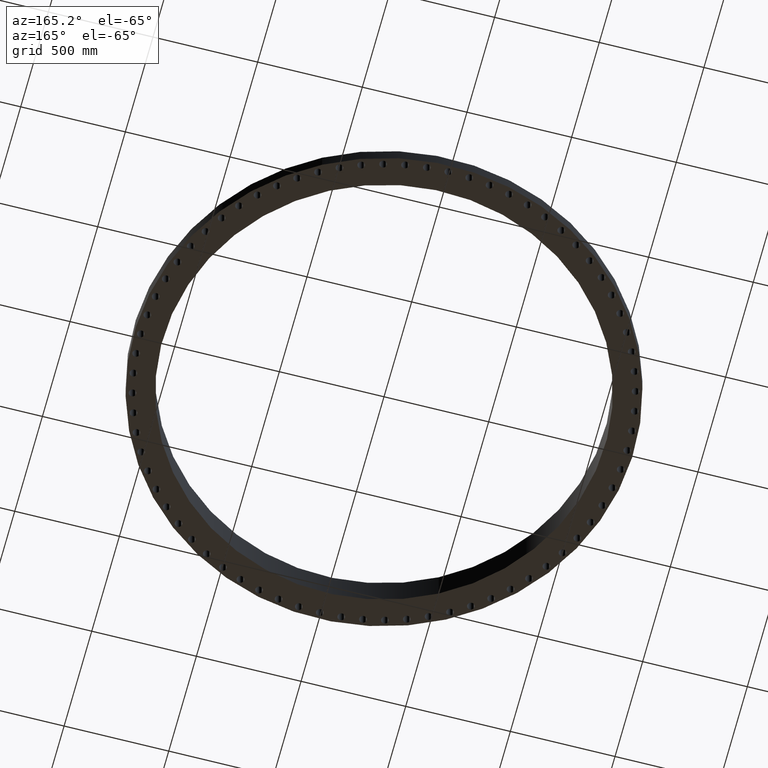
[diagram: clean part render]
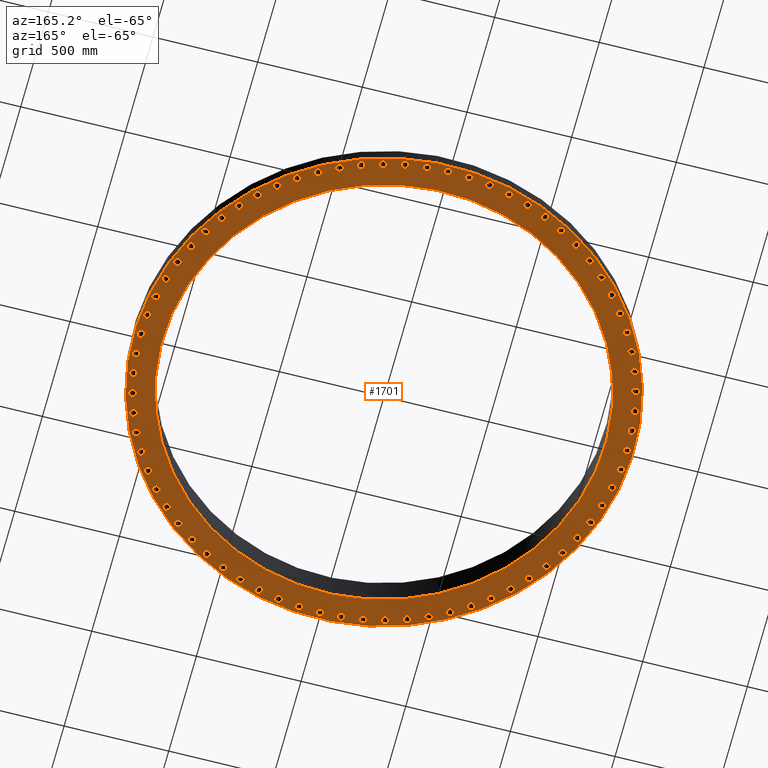
[diagram: same view with one face highlighted and labeled with its STEP entity id]
A machine part, auxiliary view. The second image highlights one B-rep face of the part: STEP entity #1701.
In plain terms, the highlighted planar face has unit normal (0, 0, -1).
Its self-contained STEP definition (entity closure, byte-faithful):
#51=AXIS2_PLACEMENT_3D('Circle Axis2P3D',#49,#50,$) ;
#77=AXIS2_PLACEMENT_3D('Circle Axis2P3D',#75,#76,$) ;
#99=AXIS2_PLACEMENT_3D('Circle Axis2P3D',#97,#98,$) ;
#134=AXIS2_PLACEMENT_3D('Circle Axis2P3D',#132,#133,$) ;
#377=AXIS2_PLACEMENT_3D('Circle Axis2P3D',#375,#376,$) ;
#396=AXIS2_PLACEMENT_3D('Circle Axis2P3D',#394,#395,$) ;
#409=AXIS2_PLACEMENT_3D('Plane Axis2P3D',#406,#407,#408) ;
#425=AXIS2_PLACEMENT_3D('Circle Axis2P3D',#423,#424,$) ;
#434=AXIS2_PLACEMENT_3D('Circle Axis2P3D',#432,#433,$) ;
#443=AXIS2_PLACEMENT_3D('Circle Axis2P3D',#441,#442,$) ;
#452=AXIS2_PLACEMENT_3D('Circle Axis2P3D',#450,#451,$) ;
#461=AXIS2_PLACEMENT_3D('Circle Axis2P3D',#459,#460,$) ;
#470=AXIS2_PLACEMENT_3D('Circle Axis2P3D',#468,#469,$) ;
#479=AXIS2_PLACEMENT_3D('Circle Axis2P3D',#477,#478,$) ;
#488=AXIS2_PLACEMENT_3D('Circle Axis2P3D',#486,#487,$) ;
#497=AXIS2_PLACEMENT_3D('Circle Axis2P3D',#495,#496,$) ;
#506=AXIS2_PLACEMENT_3D('Circle Axis2P3D',#504,#505,$) ;
#515=AXIS2_PLACEMENT_3D('Circle Axis2P3D',#513,#514,$) ;
#524=AXIS2_PLACEMENT_3D('Circle Axis2P3D',#522,#523,$) ;
#533=AXIS2_PLACEMENT_3D('Circle Axis2P3D',#531,#532,$) ;
#542=AXIS2_PLACEMENT_3D('Circle Axis2P3D',#540,#541,$) ;
#551=AXIS2_PLACEMENT_3D('Circle Axis2P3D',#549,#550,$) ;
#560=AXIS2_PLACEMENT_3D('Circle Axis2P3D',#558,#559,$) ;
#569=AXIS2_PLACEMENT_3D('Circle Axis2P3D',#567,#568,$) ;
#578=AXIS2_PLACEMENT_3D('Circle Axis2P3D',#576,#577,$) ;
#587=AXIS2_PLACEMENT_3D('Circle Axis2P3D',#585,#586,$) ;
#596=AXIS2_PLACEMENT_3D('Circle Axis2P3D',#594,#595,$) ;
#605=AXIS2_PLACEMENT_3D('Circle Axis2P3D',#603,#604,$) ;
#614=AXIS2_PLACEMENT_3D('Circle Axis2P3D',#612,#613,$) ;
#623=AXIS2_PLACEMENT_3D('Circle Axis2P3D',#621,#622,$) ;
#632=AXIS2_PLACEMENT_3D('Circle Axis2P3D',#630,#631,$) ;
#641=AXIS2_PLACEMENT_3D('Circle Axis2P3D',#639,#640,$) ;
#650=AXIS2_PLACEMENT_3D('Circle Axis2P3D',#648,#649,$) ;
#659=AXIS2_PLACEMENT_3D('Circle Axis2P3D',#657,#658,$) ;
#668=AXIS2_PLACEMENT_3D('Circle Axis2P3D',#666,#667,$) ;
#677=AXIS2_PLACEMENT_3D('Circle Axis2P3D',#675,#676,$) ;
#686=AXIS2_PLACEMENT_3D('Circle Axis2P3D',#684,#685,$) ;
#695=AXIS2_PLACEMENT_3D('Circle Axis2P3D',#693,#694,$) ;
#704=AXIS2_PLACEMENT_3D('Circle Axis2P3D',#702,#703,$) ;
#713=AXIS2_PLACEMENT_3D('Circle Axis2P3D',#711,#712,$) ;
#722=AXIS2_PLACEMENT_3D('Circle Axis2P3D',#720,#721,$) ;
#731=AXIS2_PLACEMENT_3D('Circle Axis2P3D',#729,#730,$) ;
#740=AXIS2_PLACEMENT_3D('Circle Axis2P3D',#738,#739,$) ;
#749=AXIS2_PLACEMENT_3D('Circle Axis2P3D',#747,#748,$) ;
#758=AXIS2_PLACEMENT_3D('Circle Axis2P3D',#756,#757,$) ;
#767=AXIS2_PLACEMENT_3D('Circle Axis2P3D',#765,#766,$) ;
#776=AXIS2_PLACEMENT_3D('Circle Axis2P3D',#774,#775,$) ;
#785=AXIS2_PLACEMENT_3D('Circle Axis2P3D',#783,#784,$) ;
#794=AXIS2_PLACEMENT_3D('Circle Axis2P3D',#792,#793,$) ;
#803=AXIS2_PLACEMENT_3D('Circle Axis2P3D',#801,#802,$) ;
#812=AXIS2_PLACEMENT_3D('Circle Axis2P3D',#810,#811,$) ;
#821=AXIS2_PLACEMENT_3D('Circle Axis2P3D',#819,#820,$) ;
#830=AXIS2_PLACEMENT_3D('Circle Axis2P3D',#828,#829,$) ;
#839=AXIS2_PLACEMENT_3D('Circle Axis2P3D',#837,#838,$) ;
#848=AXIS2_PLACEMENT_3D('Circle Axis2P3D',#846,#847,$) ;
#857=AXIS2_PLACEMENT_3D('Circle Axis2P3D',#855,#856,$) ;
#866=AXIS2_PLACEMENT_3D('Circle Axis2P3D',#864,#865,$) ;
#875=AXIS2_PLACEMENT_3D('Circle Axis2P3D',#873,#874,$) ;
#884=AXIS2_PLACEMENT_3D('Circle Axis2P3D',#882,#883,$) ;
#893=AXIS2_PLACEMENT_3D('Circle Axis2P3D',#891,#892,$) ;
#902=AXIS2_PLACEMENT_3D('Circle Axis2P3D',#900,#901,$) ;
#911=AXIS2_PLACEMENT_3D('Circle Axis2P3D',#909,#910,$) ;
#920=AXIS2_PLACEMENT_3D('Circle Axis2P3D',#918,#919,$) ;
#929=AXIS2_PLACEMENT_3D('Circle Axis2P3D',#927,#928,$) ;
#938=AXIS2_PLACEMENT_3D('Circle Axis2P3D',#936,#937,$) ;
#947=AXIS2_PLACEMENT_3D('Circle Axis2P3D',#945,#946,$) ;
#956=AXIS2_PLACEMENT_3D('Circle Axis2P3D',#954,#955,$) ;
#965=AXIS2_PLACEMENT_3D('Circle Axis2P3D',#963,#964,$) ;
#974=AXIS2_PLACEMENT_3D('Circle Axis2P3D',#972,#973,$) ;
#983=AXIS2_PLACEMENT_3D('Circle Axis2P3D',#981,#982,$) ;
#992=AXIS2_PLACEMENT_3D('Circle Axis2P3D',#990,#991,$) ;
#1001=AXIS2_PLACEMENT_3D('Circle Axis2P3D',#999,#1000,$) ;
#1010=AXIS2_PLACEMENT_3D('Circle Axis2P3D',#1008,#1009,$) ;
#1019=AXIS2_PLACEMENT_3D('Circle Axis2P3D',#1017,#1018,$) ;
#1028=AXIS2_PLACEMENT_3D('Circle Axis2P3D',#1026,#1027,$) ;
#1037=AXIS2_PLACEMENT_3D('Circle Axis2P3D',#1035,#1036,$) ;
#1046=AXIS2_PLACEMENT_3D('Circle Axis2P3D',#1044,#1045,$) ;
#1055=AXIS2_PLACEMENT_3D('Circle Axis2P3D',#1053,#1054,$) ;
#1064=AXIS2_PLACEMENT_3D('Circle Axis2P3D',#1062,#1063,$) ;
#1073=AXIS2_PLACEMENT_3D('Circle Axis2P3D',#1071,#1072,$) ;
#1082=AXIS2_PLACEMENT_3D('Circle Axis2P3D',#1080,#1081,$) ;
#1091=AXIS2_PLACEMENT_3D('Circle Axis2P3D',#1089,#1090,$) ;
#1100=AXIS2_PLACEMENT_3D('Circle Axis2P3D',#1098,#1099,$) ;
#1109=AXIS2_PLACEMENT_3D('Circle Axis2P3D',#1107,#1108,$) ;
#1118=AXIS2_PLACEMENT_3D('Circle Axis2P3D',#1116,#1117,$) ;
#1127=AXIS2_PLACEMENT_3D('Circle Axis2P3D',#1125,#1126,$) ;
#1136=AXIS2_PLACEMENT_3D('Circle Axis2P3D',#1134,#1135,$) ;
#1145=AXIS2_PLACEMENT_3D('Circle Axis2P3D',#1143,#1144,$) ;
#1154=AXIS2_PLACEMENT_3D('Circle Axis2P3D',#1152,#1153,$) ;
#1163=AXIS2_PLACEMENT_3D('Circle Axis2P3D',#1161,#1162,$) ;
#1172=AXIS2_PLACEMENT_3D('Circle Axis2P3D',#1170,#1171,$) ;
#1181=AXIS2_PLACEMENT_3D('Circle Axis2P3D',#1179,#1180,$) ;
#1190=AXIS2_PLACEMENT_3D('Circle Axis2P3D',#1188,#1189,$) ;
#1199=AXIS2_PLACEMENT_3D('Circle Axis2P3D',#1197,#1198,$) ;
#1208=AXIS2_PLACEMENT_3D('Circle Axis2P3D',#1206,#1207,$) ;
#1217=AXIS2_PLACEMENT_3D('Circle Axis2P3D',#1215,#1216,$) ;
#1226=AXIS2_PLACEMENT_3D('Circle Axis2P3D',#1224,#1225,$) ;
#1235=AXIS2_PLACEMENT_3D('Circle Axis2P3D',#1233,#1234,$) ;
#1244=AXIS2_PLACEMENT_3D('Circle Axis2P3D',#1242,#1243,$) ;
#1253=AXIS2_PLACEMENT_3D('Circle Axis2P3D',#1251,#1252,$) ;
#1262=AXIS2_PLACEMENT_3D('Circle Axis2P3D',#1260,#1261,$) ;
#1271=AXIS2_PLACEMENT_3D('Circle Axis2P3D',#1269,#1270,$) ;
#1280=AXIS2_PLACEMENT_3D('Circle Axis2P3D',#1278,#1279,$) ;
#1289=AXIS2_PLACEMENT_3D('Circle Axis2P3D',#1287,#1288,$) ;
#1298=AXIS2_PLACEMENT_3D('Circle Axis2P3D',#1296,#1297,$) ;
#1307=AXIS2_PLACEMENT_3D('Circle Axis2P3D',#1305,#1306,$) ;
#1316=AXIS2_PLACEMENT_3D('Circle Axis2P3D',#1314,#1315,$) ;
#1325=AXIS2_PLACEMENT_3D('Circle Axis2P3D',#1323,#1324,$) ;
#1334=AXIS2_PLACEMENT_3D('Circle Axis2P3D',#1332,#1333,$) ;
#1343=AXIS2_PLACEMENT_3D('Circle Axis2P3D',#1341,#1342,$) ;
#1352=AXIS2_PLACEMENT_3D('Circle Axis2P3D',#1350,#1351,$) ;
#1361=AXIS2_PLACEMENT_3D('Circle Axis2P3D',#1359,#1360,$) ;
#1370=AXIS2_PLACEMENT_3D('Circle Axis2P3D',#1368,#1369,$) ;
#1379=AXIS2_PLACEMENT_3D('Circle Axis2P3D',#1377,#1378,$) ;
#1388=AXIS2_PLACEMENT_3D('Circle Axis2P3D',#1386,#1387,$) ;
#1397=AXIS2_PLACEMENT_3D('Circle Axis2P3D',#1395,#1396,$) ;
#1406=AXIS2_PLACEMENT_3D('Circle Axis2P3D',#1404,#1405,$) ;
#1415=AXIS2_PLACEMENT_3D('Circle Axis2P3D',#1413,#1414,$) ;
#1424=AXIS2_PLACEMENT_3D('Circle Axis2P3D',#1422,#1423,$) ;
#1433=AXIS2_PLACEMENT_3D('Circle Axis2P3D',#1431,#1432,$) ;
#1442=AXIS2_PLACEMENT_3D('Circle Axis2P3D',#1440,#1441,$) ;
#1451=AXIS2_PLACEMENT_3D('Circle Axis2P3D',#1449,#1450,$) ;
#1460=AXIS2_PLACEMENT_3D('Circle Axis2P3D',#1458,#1459,$) ;
#1469=AXIS2_PLACEMENT_3D('Circle Axis2P3D',#1467,#1468,$) ;
#1478=AXIS2_PLACEMENT_3D('Circle Axis2P3D',#1476,#1477,$) ;
#1487=AXIS2_PLACEMENT_3D('Circle Axis2P3D',#1485,#1486,$) ;
#1496=AXIS2_PLACEMENT_3D('Circle Axis2P3D',#1494,#1495,$) ;
#1505=AXIS2_PLACEMENT_3D('Circle Axis2P3D',#1503,#1504,$) ;
#1514=AXIS2_PLACEMENT_3D('Circle Axis2P3D',#1512,#1513,$) ;
#1523=AXIS2_PLACEMENT_3D('Circle Axis2P3D',#1521,#1522,$) ;
#1532=AXIS2_PLACEMENT_3D('Circle Axis2P3D',#1530,#1531,$) ;
#1541=AXIS2_PLACEMENT_3D('Circle Axis2P3D',#1539,#1540,$) ;
#1550=AXIS2_PLACEMENT_3D('Circle Axis2P3D',#1548,#1549,$) ;
#1559=AXIS2_PLACEMENT_3D('Circle Axis2P3D',#1557,#1558,$) ;
#1568=AXIS2_PLACEMENT_3D('Circle Axis2P3D',#1566,#1567,$) ;
#1577=AXIS2_PLACEMENT_3D('Circle Axis2P3D',#1575,#1576,$) ;
#1586=AXIS2_PLACEMENT_3D('Circle Axis2P3D',#1584,#1585,$) ;
#1595=AXIS2_PLACEMENT_3D('Circle Axis2P3D',#1593,#1594,$) ;
#1604=AXIS2_PLACEMENT_3D('Circle Axis2P3D',#1602,#1603,$) ;
#1613=AXIS2_PLACEMENT_3D('Circle Axis2P3D',#1611,#1612,$) ;
#1622=AXIS2_PLACEMENT_3D('Circle Axis2P3D',#1620,#1621,$) ;
#1631=AXIS2_PLACEMENT_3D('Circle Axis2P3D',#1629,#1630,$) ;
#1640=AXIS2_PLACEMENT_3D('Circle Axis2P3D',#1638,#1639,$) ;
#1649=AXIS2_PLACEMENT_3D('Circle Axis2P3D',#1647,#1648,$) ;
#1658=AXIS2_PLACEMENT_3D('Circle Axis2P3D',#1656,#1657,$) ;
#1667=AXIS2_PLACEMENT_3D('Circle Axis2P3D',#1665,#1666,$) ;
#1676=AXIS2_PLACEMENT_3D('Circle Axis2P3D',#1674,#1675,$) ;
#1685=AXIS2_PLACEMENT_3D('Circle Axis2P3D',#1683,#1684,$) ;
#1694=AXIS2_PLACEMENT_3D('Circle Axis2P3D',#1692,#1693,$) ;
#44=CARTESIAN_POINT('Vertex',(45.1444680325,0.330803621638,0.)) ;
#49=CARTESIAN_POINT('Axis2P3D Location',(45.7500000002,0.,0.)) ;
#53=CARTESIAN_POINT('Vertex',(46.3555319679,-0.330803621638,0.)) ;
#75=CARTESIAN_POINT('Axis2P3D Location',(45.7500000002,0.,0.)) ;
#97=CARTESIAN_POINT('Axis2P3D Location',(0.,0.,5.59482469102E-015)) ;
#101=CARTESIAN_POINT('Vertex',(-22.5330003145,-41.246380409,5.59482469102E-015)) ;
#103=CARTESIAN_POINT('Vertex',(22.5330003145,41.246380409,5.59482469102E-015)) ;
#132=CARTESIAN_POINT('Axis2P3D Location',(0.,0.,5.59482469102E-015)) ;
#372=CARTESIAN_POINT('Vertex',(-19.9560880445,-36.5293741388,-6.93758261687E-014)) ;
#375=CARTESIAN_POINT('Axis2P3D Location',(0.,0.,-6.93758261687E-014)) ;
#379=CARTESIAN_POINT('Vertex',(19.9560880445,36.5293741388,-6.93758261687E-014)) ;
#394=CARTESIAN_POINT('Axis2P3D Location',(0.,0.,-6.93758261687E-014)) ;
#406=CARTESIAN_POINT('Axis2P3D Location',(0.,41.6250000002,0.)) ;
#423=CARTESIAN_POINT('Axis2P3D Location',(45.5759074379,-3.98737523072,0.)) ;
#427=CARTESIAN_POINT('Vertex',(45.0015111375,-3.60505482833,0.)) ;
#429=CARTESIAN_POINT('Vertex',(46.1503037383,-4.36969563311,0.)) ;
#432=CARTESIAN_POINT('Axis2P3D Location',(45.5759074379,-3.98737523072,0.)) ;
#441=CARTESIAN_POINT('Axis2P3D Location',(45.0549547005,-7.94440412829,0.)) ;
#445=CARTESIAN_POINT('Vertex',(44.5160655701,-7.51347663427,0.)) ;
#447=CARTESIAN_POINT('Vertex',(45.5938438309,-8.37533162232,-2.23792987641E-015)) ;
#450=CARTESIAN_POINT('Axis2P3D Location',(45.0549547005,-7.94440412829,0.)) ;
#459=CARTESIAN_POINT('Axis2P3D Location',(44.1911065529,-11.8409713135,0.)) ;
#463=CARTESIAN_POINT('Vertex',(43.6918258641,-11.3647163463,0.)) ;
#465=CARTESIAN_POINT('Vertex',(44.6903872417,-12.3172262807,0.)) ;
#468=CARTESIAN_POINT('Axis2P3D Location',(44.1911065529,-11.8409713135,0.)) ;
#477=CARTESIAN_POINT('Axis2P3D Location',(42.9909374011,-15.6474215572,0.)) ;
#481=CARTESIAN_POINT('Vertex',(42.5350649815,-15.1294637046,0.)) ;
#483=CARTESIAN_POINT('Vertex',(43.4468098207,-16.1653794098,0.)) ;
#486=CARTESIAN_POINT('Axis2P3D Location',(42.9909374011,-15.6474215572,0.)) ;
#495=CARTESIAN_POINT('Axis2P3D Location',(41.4635812571,-19.3347854747,0.)) ;
#499=CARTESIAN_POINT('Vertex',(41.054586571,-18.7790667088,0.)) ;
#501=CARTESIAN_POINT('Vertex',(41.8725759432,-19.8905042406,0.)) ;
#504=CARTESIAN_POINT('Axis2P3D Location',(41.4635812571,-19.3347854747,0.)) ;
#513=CARTESIAN_POINT('Axis2P3D Location',(39.6206622233,-22.8750000001,0.)) ;
#517=CARTESIAN_POINT('Vertex',(39.2616579673,-22.2857496762,0.)) ;
#519=CARTESIAN_POINT('Vertex',(39.9796664793,-23.4642503239,0.)) ;
#522=CARTESIAN_POINT('Axis2P3D Location',(39.6206622233,-22.8750000001,0.)) ;
#531=CARTESIAN_POINT('Axis2P3D Location',(37.4762060264,-26.2411219632,0.)) ;
#535=CARTESIAN_POINT('Vertex',(37.1699244396,-25.6228246321,0.)) ;
#537=CARTESIAN_POINT('Vertex',(37.7824876132,-26.8594192942,-2.23792987641E-015)) ;
#540=CARTESIAN_POINT('Axis2P3D Location',(37.4762060264,-26.2411219632,0.)) ;
#549=CARTESIAN_POINT('Axis2P3D Location',(35.0465332728,-29.4075331433,0.)) ;
#553=CARTESIAN_POINT('Vertex',(34.7953053431,-28.764894421,0.)) ;
#555=CARTESIAN_POINT('Vertex',(35.2977612026,-30.0501718655,-2.23792987641E-015)) ;
#558=CARTESIAN_POINT('Axis2P3D Location',(35.0465332728,-29.4075331433,0.)) ;
#567=CARTESIAN_POINT('Axis2P3D Location',(32.3501352394,-32.3501352394,0.)) ;
#571=CARTESIAN_POINT('Vertex',(32.1558729629,-31.6880459947,0.)) ;
#573=CARTESIAN_POINT('Vertex',(32.5443975159,-33.0122244841,0.)) ;
#576=CARTESIAN_POINT('Axis2P3D Location',(32.3501352394,-32.3501352394,0.)) ;
#585=CARTESIAN_POINT('Axis2P3D Location',(29.4075331433,-35.0465332728,0.)) ;
#589=CARTESIAN_POINT('Vertex',(29.2717149733,-34.3700324046,0.)) ;
#591=CARTESIAN_POINT('Vertex',(29.5433513133,-35.7230341411,0.)) ;
#594=CARTESIAN_POINT('Axis2P3D Location',(29.4075331433,-35.0465332728,0.)) ;
#603=CARTESIAN_POINT('Axis2P3D Location',(26.2411219632,-37.4762060264,0.)) ;
#607=CARTESIAN_POINT('Vertex',(26.164781558,-36.7904421147,0.)) ;
#609=CARTESIAN_POINT('Vertex',(26.3174623684,-38.161969938,-2.23792987641E-015)) ;
#612=CARTESIAN_POINT('Axis2P3D Location',(26.2411219632,-37.4762060264,0.)) ;
#621=CARTESIAN_POINT('Axis2P3D Location',(22.8750000001,-39.6206622233,0.)) ;
#625=CARTESIAN_POINT('Vertex',(22.8587183562,-38.9308543456,0.)) ;
#627=CARTESIAN_POINT('Vertex',(22.8912816439,-40.310470101,0.)) ;
#630=CARTESIAN_POINT('Axis2P3D Location',(22.8750000001,-39.6206622233,0.)) ;
#639=CARTESIAN_POINT('Axis2P3D Location',(19.3347854747,-41.4635812571,0.)) ;
#643=CARTESIAN_POINT('Vertex',(19.3786865054,-40.7749792679,0.)) ;
#645=CARTESIAN_POINT('Vertex',(19.2908844441,-42.1521832463,0.)) ;
#648=CARTESIAN_POINT('Axis2P3D Location',(19.3347854747,-41.4635812571,0.)) ;
#657=CARTESIAN_POINT('Axis2P3D Location',(15.6474215572,-42.9909374011,0.)) ;
#661=CARTESIAN_POINT('Vertex',(15.751171149,-42.3087819773,0.)) ;
#663=CARTESIAN_POINT('Vertex',(15.5436719654,-43.6730928249,-2.23792987641E-015)) ;
#666=CARTESIAN_POINT('Axis2P3D Location',(15.6474215572,-42.9909374011,0.)) ;
#675=CARTESIAN_POINT('Axis2P3D Location',(11.8409713135,-44.1911065529,0.)) ;
#679=CARTESIAN_POINT('Vertex',(12.0037798694,-43.5205893092,0.)) ;
#681=CARTESIAN_POINT('Vertex',(11.6781627576,-44.8616237966,0.)) ;
#684=CARTESIAN_POINT('Axis2P3D Location',(11.8409713135,-44.1911065529,0.)) ;
#693=CARTESIAN_POINT('Axis2P3D Location',(7.94440412829,-45.0549547005,0.)) ;
#697=CARTESIAN_POINT('Vertex',(8.1650325769,-44.4011786779,0.)) ;
#699=CARTESIAN_POINT('Vertex',(7.72377567969,-45.708730723,-2.23792987641E-015)) ;
#702=CARTESIAN_POINT('Axis2P3D Location',(7.94440412829,-45.0549547005,0.)) ;
#711=CARTESIAN_POINT('Axis2P3D Location',(3.98737523072,-45.5759074379,0.)) ;
#715=CARTESIAN_POINT('Vertex',(4.2641444563,-44.9438482668,0.)) ;
#717=CARTESIAN_POINT('Vertex',(3.71060600514,-46.207966609,0.)) ;
#720=CARTESIAN_POINT('Axis2P3D Location',(3.98737523072,-45.5759074379,0.)) ;
#729=CARTESIAN_POINT('Axis2P3D Location',(-6.22424246876E-015,-45.7500000002,0.)) ;
#733=CARTESIAN_POINT('Vertex',(0.330803621638,-45.1444680325,0.)) ;
#735=CARTESIAN_POINT('Vertex',(-0.330803621638,-46.3555319679,0.)) ;
#738=CARTESIAN_POINT('Axis2P3D Location',(1.67844740731E-015,-45.7500000002,0.)) ;
#747=CARTESIAN_POINT('Axis2P3D Location',(-3.98737523072,-45.5759074379,0.)) ;
#751=CARTESIAN_POINT('Vertex',(-3.60505482833,-45.0015111375,0.)) ;
#753=CARTESIAN_POINT('Vertex',(-4.36969563311,-46.1503037383,0.)) ;
#756=CARTESIAN_POINT('Axis2P3D Location',(-3.98737523072,-45.5759074379,0.)) ;
#765=CARTESIAN_POINT('Axis2P3D Location',(-7.94440412829,-45.0549547005,0.)) ;
#769=CARTESIAN_POINT('Vertex',(-7.51347663427,-44.5160655701,0.)) ;
#771=CARTESIAN_POINT('Vertex',(-8.37533162232,-45.5938438309,-2.23792987641E-015)) ;
#774=CARTESIAN_POINT('Axis2P3D Location',(-7.94440412829,-45.0549547005,0.)) ;
#783=CARTESIAN_POINT('Axis2P3D Location',(-11.8409713135,-44.1911065529,0.)) ;
#787=CARTESIAN_POINT('Vertex',(-11.3647163463,-43.6918258641,0.)) ;
#789=CARTESIAN_POINT('Vertex',(-12.3172262807,-44.6903872417,-1.1189649382E-015)) ;
#792=CARTESIAN_POINT('Axis2P3D Location',(-11.8409713135,-44.1911065529,0.)) ;
#801=CARTESIAN_POINT('Axis2P3D Location',(-15.6474215572,-42.9909374011,0.)) ;
#805=CARTESIAN_POINT('Vertex',(-15.1294637046,-42.5350649815,0.)) ;
#807=CARTESIAN_POINT('Vertex',(-16.1653794098,-43.4468098207,0.)) ;
#810=CARTESIAN_POINT('Axis2P3D Location',(-15.6474215572,-42.9909374011,0.)) ;
#819=CARTESIAN_POINT('Axis2P3D Location',(-19.3347854747,-41.4635812571,0.)) ;
#823=CARTESIAN_POINT('Vertex',(-18.7790667088,-41.054586571,0.)) ;
#825=CARTESIAN_POINT('Vertex',(-19.8905042406,-41.8725759432,0.)) ;
#828=CARTESIAN_POINT('Axis2P3D Location',(-19.3347854747,-41.4635812571,0.)) ;
#837=CARTESIAN_POINT('Axis2P3D Location',(-22.8750000001,-39.6206622233,0.)) ;
#841=CARTESIAN_POINT('Vertex',(-22.2857496762,-39.2616579673,0.)) ;
#843=CARTESIAN_POINT('Vertex',(-23.4642503239,-39.9796664793,-2.23792987641E-015)) ;
#846=CARTESIAN_POINT('Axis2P3D Location',(-22.8750000001,-39.6206622233,0.)) ;
#855=CARTESIAN_POINT('Axis2P3D Location',(-26.2411219632,-37.4762060264,0.)) ;
#859=CARTESIAN_POINT('Vertex',(-25.6228246321,-37.1699244396,0.)) ;
#861=CARTESIAN_POINT('Vertex',(-26.8594192942,-37.7824876132,0.)) ;
#864=CARTESIAN_POINT('Axis2P3D Location',(-26.2411219632,-37.4762060264,0.)) ;
#873=CARTESIAN_POINT('Axis2P3D Location',(-29.4075331433,-35.0465332728,0.)) ;
#877=CARTESIAN_POINT('Vertex',(-28.764894421,-34.7953053431,0.)) ;
#879=CARTESIAN_POINT('Vertex',(-30.0501718655,-35.2977612026,0.)) ;
#882=CARTESIAN_POINT('Axis2P3D Location',(-29.4075331433,-35.0465332728,0.)) ;
#891=CARTESIAN_POINT('Axis2P3D Location',(-32.3501352394,-32.3501352394,0.)) ;
#895=CARTESIAN_POINT('Vertex',(-31.6880459947,-32.1558729629,0.)) ;
#897=CARTESIAN_POINT('Vertex',(-33.0122244841,-32.5443975159,0.)) ;
#900=CARTESIAN_POINT('Axis2P3D Location',(-32.3501352394,-32.3501352394,0.)) ;
#909=CARTESIAN_POINT('Axis2P3D Location',(-35.0465332728,-29.4075331433,0.)) ;
#913=CARTESIAN_POINT('Vertex',(-34.3700324046,-29.2717149733,0.)) ;
#915=CARTESIAN_POINT('Vertex',(-35.7230341411,-29.5433513133,0.)) ;
#918=CARTESIAN_POINT('Axis2P3D Location',(-35.0465332728,-29.4075331433,0.)) ;
#927=CARTESIAN_POINT('Axis2P3D Location',(-37.4762060264,-26.2411219632,0.)) ;
#931=CARTESIAN_POINT('Vertex',(-36.7904421147,-26.164781558,0.)) ;
#933=CARTESIAN_POINT('Vertex',(-38.161969938,-26.3174623684,0.)) ;
#936=CARTESIAN_POINT('Axis2P3D Location',(-37.4762060264,-26.2411219632,0.)) ;
#945=CARTESIAN_POINT('Axis2P3D Location',(-39.6206622233,-22.8750000001,0.)) ;
#949=CARTESIAN_POINT('Vertex',(-38.9308543456,-22.8587183562,0.)) ;
#951=CARTESIAN_POINT('Vertex',(-40.310470101,-22.8912816439,0.)) ;
#954=CARTESIAN_POINT('Axis2P3D Location',(-39.6206622233,-22.8750000001,0.)) ;
#963=CARTESIAN_POINT('Axis2P3D Location',(-41.4635812571,-19.3347854747,0.)) ;
#967=CARTESIAN_POINT('Vertex',(-40.7749792679,-19.3786865054,0.)) ;
#969=CARTESIAN_POINT('Vertex',(-42.1521832463,-19.2908844441,0.)) ;
#972=CARTESIAN_POINT('Axis2P3D Location',(-41.4635812571,-19.3347854747,0.)) ;
#981=CARTESIAN_POINT('Axis2P3D Location',(-42.9909374011,-15.6474215572,0.)) ;
#985=CARTESIAN_POINT('Vertex',(-42.3087819773,-15.751171149,0.)) ;
#987=CARTESIAN_POINT('Vertex',(-43.6730928249,-15.5436719654,-2.23792987641E-015)) ;
#990=CARTESIAN_POINT('Axis2P3D Location',(-42.9909374011,-15.6474215572,0.)) ;
#999=CARTESIAN_POINT('Axis2P3D Location',(-44.1911065529,-11.8409713135,0.)) ;
#1003=CARTESIAN_POINT('Vertex',(-43.5205893092,-12.0037798694,0.)) ;
#1005=CARTESIAN_POINT('Vertex',(-44.8616237966,-11.6781627576,0.)) ;
#1008=CARTESIAN_POINT('Axis2P3D Location',(-44.1911065529,-11.8409713135,0.)) ;
#1017=CARTESIAN_POINT('Axis2P3D Location',(-45.0549547005,-7.94440412829,0.)) ;
#1021=CARTESIAN_POINT('Vertex',(-44.4011786779,-8.1650325769,0.)) ;
#1023=CARTESIAN_POINT('Vertex',(-45.708730723,-7.72377567969,-2.23792987641E-015)) ;
#1026=CARTESIAN_POINT('Axis2P3D Location',(-45.0549547005,-7.94440412829,0.)) ;
#1035=CARTESIAN_POINT('Axis2P3D Location',(-45.5759074379,-3.98737523072,0.)) ;
#1039=CARTESIAN_POINT('Vertex',(-44.9438482668,-4.2641444563,0.)) ;
#1041=CARTESIAN_POINT('Vertex',(-46.207966609,-3.71060600514,0.)) ;
#1044=CARTESIAN_POINT('Axis2P3D Location',(-45.5759074379,-3.98737523072,0.)) ;
#1053=CARTESIAN_POINT('Axis2P3D Location',(-45.7500000002,-8.95171950564E-015,0.)) ;
#1057=CARTESIAN_POINT('Vertex',(-45.1444680325,-0.330803621638,0.)) ;
#1059=CARTESIAN_POINT('Vertex',(-46.3555319679,0.330803621638,0.)) ;
#1062=CARTESIAN_POINT('Axis2P3D Location',(-45.7500000002,-1.79034390113E-014,0.)) ;
#1071=CARTESIAN_POINT('Axis2P3D Location',(-45.5759074379,3.98737523072,0.)) ;
#1075=CARTESIAN_POINT('Vertex',(-45.0015111375,3.60505482833,0.)) ;
#1077=CARTESIAN_POINT('Vertex',(-46.1503037383,4.36969563311,0.)) ;
#1080=CARTESIAN_POINT('Axis2P3D Location',(-45.5759074379,3.98737523072,0.)) ;
#1089=CARTESIAN_POINT('Axis2P3D Location',(-45.0549547005,7.94440412829,0.)) ;
#1093=CARTESIAN_POINT('Vertex',(-44.5160655701,7.51347663427,0.)) ;
#1095=CARTESIAN_POINT('Vertex',(-45.5938438309,8.37533162232,0.)) ;
#1098=CARTESIAN_POINT('Axis2P3D Location',(-45.0549547005,7.94440412829,0.)) ;
#1107=CARTESIAN_POINT('Axis2P3D Location',(-44.1911065529,11.8409713135,0.)) ;
#1111=CARTESIAN_POINT('Vertex',(-43.6918258641,11.3647163463,0.)) ;
#1113=CARTESIAN_POINT('Vertex',(-44.6903872417,12.3172262807,0.)) ;
#1116=CARTESIAN_POINT('Axis2P3D Location',(-44.1911065529,11.8409713135,0.)) ;
#1125=CARTESIAN_POINT('Axis2P3D Location',(-42.9909374011,15.6474215572,0.)) ;
#1129=CARTESIAN_POINT('Vertex',(-42.5350649815,15.1294637046,0.)) ;
#1131=CARTESIAN_POINT('Vertex',(-43.4468098207,16.1653794098,0.)) ;
#1134=CARTESIAN_POINT('Axis2P3D Location',(-42.9909374011,15.6474215572,0.)) ;
#1143=CARTESIAN_POINT('Axis2P3D Location',(-41.4635812571,19.3347854747,0.)) ;
#1147=CARTESIAN_POINT('Vertex',(-41.054586571,18.7790667088,0.)) ;
#1149=CARTESIAN_POINT('Vertex',(-41.8725759432,19.8905042406,0.)) ;
#1152=CARTESIAN_POINT('Axis2P3D Location',(-41.4635812571,19.3347854747,0.)) ;
#1161=CARTESIAN_POINT('Axis2P3D Location',(-39.6206622233,22.8750000001,0.)) ;
#1165=CARTESIAN_POINT('Vertex',(-39.2616579673,22.2857496762,0.)) ;
#1167=CARTESIAN_POINT('Vertex',(-39.9796664793,23.4642503239,0.)) ;
#1170=CARTESIAN_POINT('Axis2P3D Location',(-39.6206622233,22.8750000001,0.)) ;
#1179=CARTESIAN_POINT('Axis2P3D Location',(-37.4762060264,26.2411219632,0.)) ;
#1183=CARTESIAN_POINT('Vertex',(-37.1699244396,25.6228246321,0.)) ;
#1185=CARTESIAN_POINT('Vertex',(-37.7824876132,26.8594192942,0.)) ;
#1188=CARTESIAN_POINT('Axis2P3D Location',(-37.4762060264,26.2411219632,0.)) ;
#1197=CARTESIAN_POINT('Axis2P3D Location',(-35.0465332728,29.4075331433,0.)) ;
#1201=CARTESIAN_POINT('Vertex',(-34.7953053431,28.764894421,0.)) ;
#1203=CARTESIAN_POINT('Vertex',(-35.2977612026,30.0501718655,-2.23792987641E-015)) ;
#1206=CARTESIAN_POINT('Axis2P3D Location',(-35.0465332728,29.4075331433,0.)) ;
#1215=CARTESIAN_POINT('Axis2P3D Location',(-32.3501352394,32.3501352394,0.)) ;
#1219=CARTESIAN_POINT('Vertex',(-32.1558729629,31.6880459947,0.)) ;
#1221=CARTESIAN_POINT('Vertex',(-32.5443975159,33.0122244841,0.)) ;
#1224=CARTESIAN_POINT('Axis2P3D Location',(-32.3501352394,32.3501352394,0.)) ;
#1233=CARTESIAN_POINT('Axis2P3D Location',(-29.4075331433,35.0465332728,0.)) ;
#1237=CARTESIAN_POINT('Vertex',(-29.2717149733,34.3700324046,0.)) ;
#1239=CARTESIAN_POINT('Vertex',(-29.5433513133,35.7230341411,0.)) ;
#1242=CARTESIAN_POINT('Axis2P3D Location',(-29.4075331433,35.0465332728,0.)) ;
#1251=CARTESIAN_POINT('Axis2P3D Location',(-26.2411219632,37.4762060264,0.)) ;
#1255=CARTESIAN_POINT('Vertex',(-26.164781558,36.7904421147,0.)) ;
#1257=CARTESIAN_POINT('Vertex',(-26.3174623684,38.161969938,0.)) ;
#1260=CARTESIAN_POINT('Axis2P3D Location',(-26.2411219632,37.4762060264,0.)) ;
#1269=CARTESIAN_POINT('Axis2P3D Location',(-22.8750000001,39.6206622233,0.)) ;
#1273=CARTESIAN_POINT('Vertex',(-22.8587183562,38.9308543456,0.)) ;
#1275=CARTESIAN_POINT('Vertex',(-22.8912816439,40.310470101,0.)) ;
#1278=CARTESIAN_POINT('Axis2P3D Location',(-22.8750000001,39.6206622233,0.)) ;
#1287=CARTESIAN_POINT('Axis2P3D Location',(-19.3347854747,41.4635812571,0.)) ;
#1291=CARTESIAN_POINT('Vertex',(-19.3786865054,40.7749792679,0.)) ;
#1293=CARTESIAN_POINT('Vertex',(-19.2908844441,42.1521832463,-1.1189649382E-015)) ;
#1296=CARTESIAN_POINT('Axis2P3D Location',(-19.3347854747,41.4635812571,0.)) ;
#1305=CARTESIAN_POINT('Axis2P3D Location',(-15.6474215572,42.9909374011,0.)) ;
#1309=CARTESIAN_POINT('Vertex',(-15.751171149,42.3087819773,0.)) ;
#1311=CARTESIAN_POINT('Vertex',(-15.5436719654,43.6730928249,-2.23792987641E-015)) ;
#1314=CARTESIAN_POINT('Axis2P3D Location',(-15.6474215572,42.9909374011,0.)) ;
#1323=CARTESIAN_POINT('Axis2P3D Location',(-11.8409713135,44.1911065529,0.)) ;
#1327=CARTESIAN_POINT('Vertex',(-12.0037798694,43.5205893092,0.)) ;
#1329=CARTESIAN_POINT('Vertex',(-11.6781627576,44.8616237966,0.)) ;
#1332=CARTESIAN_POINT('Axis2P3D Location',(-11.8409713135,44.1911065529,0.)) ;
#1341=CARTESIAN_POINT('Axis2P3D Location',(-7.94440412829,45.0549547005,0.)) ;
#1345=CARTESIAN_POINT('Vertex',(-8.1650325769,44.4011786779,0.)) ;
#1347=CARTESIAN_POINT('Vertex',(-7.72377567969,45.708730723,-2.23792987641E-015)) ;
#1350=CARTESIAN_POINT('Axis2P3D Location',(-7.94440412829,45.0549547005,0.)) ;
#1359=CARTESIAN_POINT('Axis2P3D Location',(-3.98737523072,45.5759074379,0.)) ;
#1363=CARTESIAN_POINT('Vertex',(-4.2641444563,44.9438482668,0.)) ;
#1365=CARTESIAN_POINT('Vertex',(-3.71060600514,46.207966609,0.)) ;
#1368=CARTESIAN_POINT('Axis2P3D Location',(-3.98737523072,45.5759074379,0.)) ;
#1377=CARTESIAN_POINT('Axis2P3D Location',(-4.47585975282E-015,45.7500000002,0.)) ;
#1381=CARTESIAN_POINT('Vertex',(-0.330803621638,45.1444680325,0.)) ;
#1383=CARTESIAN_POINT('Vertex',(0.330803621638,46.3555319679,0.)) ;
#1386=CARTESIAN_POINT('Axis2P3D Location',(-1.23785496289E-014,45.7500000002,0.)) ;
#1395=CARTESIAN_POINT('Axis2P3D Location',(3.98737523072,45.5759074379,0.)) ;
#1399=CARTESIAN_POINT('Vertex',(3.60505482833,45.0015111375,0.)) ;
#1401=CARTESIAN_POINT('Vertex',(4.36969563311,46.1503037383,0.)) ;
#1404=CARTESIAN_POINT('Axis2P3D Location',(3.98737523072,45.5759074379,0.)) ;
#1413=CARTESIAN_POINT('Axis2P3D Location',(7.94440412829,45.0549547005,0.)) ;
#1417=CARTESIAN_POINT('Vertex',(7.51347663427,44.5160655701,0.)) ;
#1419=CARTESIAN_POINT('Vertex',(8.37533162232,45.5938438309,0.)) ;
#1422=CARTESIAN_POINT('Axis2P3D Location',(7.94440412829,45.0549547005,0.)) ;
#1431=CARTESIAN_POINT('Axis2P3D Location',(11.8409713135,44.1911065529,0.)) ;
#1435=CARTESIAN_POINT('Vertex',(11.3647163463,43.6918258641,0.)) ;
#1437=CARTESIAN_POINT('Vertex',(12.3172262807,44.6903872417,0.)) ;
#1440=CARTESIAN_POINT('Axis2P3D Location',(11.8409713135,44.1911065529,0.)) ;
#1449=CARTESIAN_POINT('Axis2P3D Location',(15.6474215572,42.9909374011,0.)) ;
#1453=CARTESIAN_POINT('Vertex',(15.1294637046,42.5350649815,0.)) ;
#1455=CARTESIAN_POINT('Vertex',(16.1653794098,43.4468098207,0.)) ;
#1458=CARTESIAN_POINT('Axis2P3D Location',(15.6474215572,42.9909374011,0.)) ;
#1467=CARTESIAN_POINT('Axis2P3D Location',(19.3347854747,41.4635812571,0.)) ;
#1471=CARTESIAN_POINT('Vertex',(18.7790667088,41.054586571,0.)) ;
#1473=CARTESIAN_POINT('Vertex',(19.8905042406,41.8725759432,-2.23792987641E-015)) ;
#1476=CARTESIAN_POINT('Axis2P3D Location',(19.3347854747,41.4635812571,0.)) ;
#1485=CARTESIAN_POINT('Axis2P3D Location',(22.8750000001,39.6206622233,0.)) ;
#1489=CARTESIAN_POINT('Vertex',(22.2857496762,39.2616579673,0.)) ;
#1491=CARTESIAN_POINT('Vertex',(23.4642503239,39.9796664793,0.)) ;
#1494=CARTESIAN_POINT('Axis2P3D Location',(22.8750000001,39.6206622233,0.)) ;
#1503=CARTESIAN_POINT('Axis2P3D Location',(26.2411219632,37.4762060264,0.)) ;
#1507=CARTESIAN_POINT('Vertex',(25.6228246321,37.1699244396,0.)) ;
#1509=CARTESIAN_POINT('Vertex',(26.8594192942,37.7824876132,-2.23792987641E-015)) ;
#1512=CARTESIAN_POINT('Axis2P3D Location',(26.2411219632,37.4762060264,0.)) ;
#1521=CARTESIAN_POINT('Axis2P3D Location',(29.4075331433,35.0465332728,0.)) ;
#1525=CARTESIAN_POINT('Vertex',(28.764894421,34.7953053431,0.)) ;
#1527=CARTESIAN_POINT('Vertex',(30.0501718655,35.2977612026,0.)) ;
#1530=CARTESIAN_POINT('Axis2P3D Location',(29.4075331433,35.0465332728,0.)) ;
#1539=CARTESIAN_POINT('Axis2P3D Location',(32.3501352394,32.3501352394,0.)) ;
#1543=CARTESIAN_POINT('Vertex',(31.6880459947,32.1558729629,0.)) ;
#1545=CARTESIAN_POINT('Vertex',(33.0122244841,32.5443975159,0.)) ;
#1548=CARTESIAN_POINT('Axis2P3D Location',(32.3501352394,32.3501352394,0.)) ;
#1557=CARTESIAN_POINT('Axis2P3D Location',(35.0465332728,29.4075331433,0.)) ;
#1561=CARTESIAN_POINT('Vertex',(34.3700324046,29.2717149733,0.)) ;
#1563=CARTESIAN_POINT('Vertex',(35.7230341411,29.5433513133,0.)) ;
#1566=CARTESIAN_POINT('Axis2P3D Location',(35.0465332728,29.4075331433,0.)) ;
#1575=CARTESIAN_POINT('Axis2P3D Location',(37.4762060264,26.2411219632,0.)) ;
#1579=CARTESIAN_POINT('Vertex',(36.7904421147,26.164781558,0.)) ;
#1581=CARTESIAN_POINT('Vertex',(38.161969938,26.3174623684,0.)) ;
#1584=CARTESIAN_POINT('Axis2P3D Location',(37.4762060264,26.2411219632,0.)) ;
#1593=CARTESIAN_POINT('Axis2P3D Location',(39.6206622233,22.8750000001,0.)) ;
#1597=CARTESIAN_POINT('Vertex',(38.9308543456,22.8587183562,0.)) ;
#1599=CARTESIAN_POINT('Vertex',(40.310470101,22.8912816439,0.)) ;
#1602=CARTESIAN_POINT('Axis2P3D Location',(39.6206622233,22.8750000001,0.)) ;
#1611=CARTESIAN_POINT('Axis2P3D Location',(41.4635812571,19.3347854747,0.)) ;
#1615=CARTESIAN_POINT('Vertex',(40.7749792679,19.3786865054,0.)) ;
#1617=CARTESIAN_POINT('Vertex',(42.1521832463,19.2908844441,0.)) ;
#1620=CARTESIAN_POINT('Axis2P3D Location',(41.4635812571,19.3347854747,0.)) ;
#1629=CARTESIAN_POINT('Axis2P3D Location',(42.9909374011,15.6474215572,0.)) ;
#1633=CARTESIAN_POINT('Vertex',(42.3087819773,15.751171149,0.)) ;
#1635=CARTESIAN_POINT('Vertex',(43.6730928249,15.5436719654,0.)) ;
#1638=CARTESIAN_POINT('Axis2P3D Location',(42.9909374011,15.6474215572,0.)) ;
#1647=CARTESIAN_POINT('Axis2P3D Location',(44.1911065529,11.8409713135,0.)) ;
#1651=CARTESIAN_POINT('Vertex',(43.5205893092,12.0037798694,0.)) ;
#1653=CARTESIAN_POINT('Vertex',(44.8616237966,11.6781627576,0.)) ;
#1656=CARTESIAN_POINT('Axis2P3D Location',(44.1911065529,11.8409713135,0.)) ;
#1665=CARTESIAN_POINT('Axis2P3D Location',(45.0549547005,7.94440412829,0.)) ;
#1669=CARTESIAN_POINT('Vertex',(44.4011786779,8.1650325769,0.)) ;
#1671=CARTESIAN_POINT('Vertex',(45.708730723,7.72377567969,-2.23792987641E-015)) ;
#1674=CARTESIAN_POINT('Axis2P3D Location',(45.0549547005,7.94440412829,0.)) ;
#1683=CARTESIAN_POINT('Axis2P3D Location',(45.5759074379,3.98737523072,0.)) ;
#1687=CARTESIAN_POINT('Vertex',(44.9438482668,4.2641444563,0.)) ;
#1689=CARTESIAN_POINT('Vertex',(46.207966609,3.71060600514,0.)) ;
#1692=CARTESIAN_POINT('Axis2P3D Location',(45.5759074379,3.98737523072,0.)) ;
#50=DIRECTION('Axis2P3D Direction',(0.,-0.,-0.0393700787402)) ;
#76=DIRECTION('Axis2P3D Direction',(0.,-0.,-0.0393700787402)) ;
#98=DIRECTION('Axis2P3D Direction',(0.,0.,-0.0393700787402)) ;
#133=DIRECTION('Axis2P3D Direction',(0.,0.,-0.0393700787402)) ;
#376=DIRECTION('Axis2P3D Direction',(0.,0.,-0.0393700787402)) ;
#395=DIRECTION('Axis2P3D Direction',(0.,0.,-0.0393700787402)) ;
#407=DIRECTION('Axis2P3D Direction',(0.,0.,-0.0393700787402)) ;
#408=DIRECTION('Axis2P3D XDirection',(0.0393700787402,0.,0.)) ;
#424=DIRECTION('Axis2P3D Direction',(0.,0.,-0.0393700787402)) ;
#433=DIRECTION('Axis2P3D Direction',(0.,0.,-0.0393700787402)) ;
#442=DIRECTION('Axis2P3D Direction',(0.,0.,-0.0393700787402)) ;
#451=DIRECTION('Axis2P3D Direction',(0.,0.,-0.0393700787402)) ;
#460=DIRECTION('Axis2P3D Direction',(0.,0.,-0.0393700787402)) ;
#469=DIRECTION('Axis2P3D Direction',(0.,0.,-0.0393700787402)) ;
#478=DIRECTION('Axis2P3D Direction',(0.,0.,-0.0393700787402)) ;
#487=DIRECTION('Axis2P3D Direction',(0.,0.,-0.0393700787402)) ;
#496=DIRECTION('Axis2P3D Direction',(0.,0.,-0.0393700787402)) ;
#505=DIRECTION('Axis2P3D Direction',(0.,0.,-0.0393700787402)) ;
#514=DIRECTION('Axis2P3D Direction',(0.,0.,-0.0393700787402)) ;
#523=DIRECTION('Axis2P3D Direction',(0.,0.,-0.0393700787402)) ;
#532=DIRECTION('Axis2P3D Direction',(0.,0.,-0.0393700787402)) ;
#541=DIRECTION('Axis2P3D Direction',(0.,0.,-0.0393700787402)) ;
#550=DIRECTION('Axis2P3D Direction',(0.,0.,-0.0393700787402)) ;
#559=DIRECTION('Axis2P3D Direction',(0.,0.,-0.0393700787402)) ;
#568=DIRECTION('Axis2P3D Direction',(0.,0.,-0.0393700787402)) ;
#577=DIRECTION('Axis2P3D Direction',(0.,0.,-0.0393700787402)) ;
#586=DIRECTION('Axis2P3D Direction',(0.,0.,-0.0393700787402)) ;
#595=DIRECTION('Axis2P3D Direction',(0.,0.,-0.0393700787402)) ;
#604=DIRECTION('Axis2P3D Direction',(0.,0.,-0.0393700787402)) ;
#613=DIRECTION('Axis2P3D Direction',(0.,0.,-0.0393700787402)) ;
#622=DIRECTION('Axis2P3D Direction',(0.,0.,-0.0393700787402)) ;
#631=DIRECTION('Axis2P3D Direction',(0.,0.,-0.0393700787402)) ;
#640=DIRECTION('Axis2P3D Direction',(0.,0.,-0.0393700787402)) ;
#649=DIRECTION('Axis2P3D Direction',(0.,0.,-0.0393700787402)) ;
#658=DIRECTION('Axis2P3D Direction',(0.,0.,-0.0393700787402)) ;
#667=DIRECTION('Axis2P3D Direction',(0.,0.,-0.0393700787402)) ;
#676=DIRECTION('Axis2P3D Direction',(0.,0.,-0.0393700787402)) ;
#685=DIRECTION('Axis2P3D Direction',(0.,0.,-0.0393700787402)) ;
#694=DIRECTION('Axis2P3D Direction',(0.,0.,-0.0393700787402)) ;
#703=DIRECTION('Axis2P3D Direction',(0.,0.,-0.0393700787402)) ;
#712=DIRECTION('Axis2P3D Direction',(0.,0.,-0.0393700787402)) ;
#721=DIRECTION('Axis2P3D Direction',(0.,0.,-0.0393700787402)) ;
#730=DIRECTION('Axis2P3D Direction',(0.,0.,-0.0393700787402)) ;
#739=DIRECTION('Axis2P3D Direction',(0.,0.,-0.0393700787402)) ;
#748=DIRECTION('Axis2P3D Direction',(0.,0.,-0.0393700787402)) ;
#757=DIRECTION('Axis2P3D Direction',(0.,0.,-0.0393700787402)) ;
#766=DIRECTION('Axis2P3D Direction',(0.,0.,-0.0393700787402)) ;
#775=DIRECTION('Axis2P3D Direction',(0.,0.,-0.0393700787402)) ;
#784=DIRECTION('Axis2P3D Direction',(0.,0.,-0.0393700787402)) ;
#793=DIRECTION('Axis2P3D Direction',(0.,0.,-0.0393700787402)) ;
#802=DIRECTION('Axis2P3D Direction',(0.,0.,-0.0393700787402)) ;
#811=DIRECTION('Axis2P3D Direction',(0.,0.,-0.0393700787402)) ;
#820=DIRECTION('Axis2P3D Direction',(0.,0.,-0.0393700787402)) ;
#829=DIRECTION('Axis2P3D Direction',(0.,0.,-0.0393700787402)) ;
#838=DIRECTION('Axis2P3D Direction',(0.,0.,-0.0393700787402)) ;
#847=DIRECTION('Axis2P3D Direction',(0.,0.,-0.0393700787402)) ;
#856=DIRECTION('Axis2P3D Direction',(0.,0.,-0.0393700787402)) ;
#865=DIRECTION('Axis2P3D Direction',(0.,0.,-0.0393700787402)) ;
#874=DIRECTION('Axis2P3D Direction',(0.,0.,-0.0393700787402)) ;
#883=DIRECTION('Axis2P3D Direction',(0.,0.,-0.0393700787402)) ;
#892=DIRECTION('Axis2P3D Direction',(0.,0.,-0.0393700787402)) ;
#901=DIRECTION('Axis2P3D Direction',(0.,0.,-0.0393700787402)) ;
#910=DIRECTION('Axis2P3D Direction',(0.,0.,-0.0393700787402)) ;
#919=DIRECTION('Axis2P3D Direction',(0.,0.,-0.0393700787402)) ;
#928=DIRECTION('Axis2P3D Direction',(0.,0.,-0.0393700787402)) ;
#937=DIRECTION('Axis2P3D Direction',(0.,0.,-0.0393700787402)) ;
#946=DIRECTION('Axis2P3D Direction',(0.,0.,-0.0393700787402)) ;
#955=DIRECTION('Axis2P3D Direction',(0.,0.,-0.0393700787402)) ;
#964=DIRECTION('Axis2P3D Direction',(0.,0.,-0.0393700787402)) ;
#973=DIRECTION('Axis2P3D Direction',(0.,0.,-0.0393700787402)) ;
#982=DIRECTION('Axis2P3D Direction',(0.,0.,-0.0393700787402)) ;
#991=DIRECTION('Axis2P3D Direction',(0.,0.,-0.0393700787402)) ;
#1000=DIRECTION('Axis2P3D Direction',(0.,0.,-0.0393700787402)) ;
#1009=DIRECTION('Axis2P3D Direction',(0.,0.,-0.0393700787402)) ;
#1018=DIRECTION('Axis2P3D Direction',(0.,0.,-0.0393700787402)) ;
#1027=DIRECTION('Axis2P3D Direction',(0.,0.,-0.0393700787402)) ;
#1036=DIRECTION('Axis2P3D Direction',(0.,0.,-0.0393700787402)) ;
#1045=DIRECTION('Axis2P3D Direction',(0.,0.,-0.0393700787402)) ;
#1054=DIRECTION('Axis2P3D Direction',(0.,0.,-0.0393700787402)) ;
#1063=DIRECTION('Axis2P3D Direction',(0.,0.,-0.0393700787402)) ;
#1072=DIRECTION('Axis2P3D Direction',(0.,0.,-0.0393700787402)) ;
#1081=DIRECTION('Axis2P3D Direction',(0.,0.,-0.0393700787402)) ;
#1090=DIRECTION('Axis2P3D Direction',(0.,0.,-0.0393700787402)) ;
#1099=DIRECTION('Axis2P3D Direction',(0.,0.,-0.0393700787402)) ;
#1108=DIRECTION('Axis2P3D Direction',(0.,0.,-0.0393700787402)) ;
#1117=DIRECTION('Axis2P3D Direction',(0.,0.,-0.0393700787402)) ;
#1126=DIRECTION('Axis2P3D Direction',(0.,0.,-0.0393700787402)) ;
#1135=DIRECTION('Axis2P3D Direction',(0.,0.,-0.0393700787402)) ;
#1144=DIRECTION('Axis2P3D Direction',(0.,0.,-0.0393700787402)) ;
#1153=DIRECTION('Axis2P3D Direction',(0.,0.,-0.0393700787402)) ;
#1162=DIRECTION('Axis2P3D Direction',(0.,0.,-0.0393700787402)) ;
#1171=DIRECTION('Axis2P3D Direction',(0.,0.,-0.0393700787402)) ;
#1180=DIRECTION('Axis2P3D Direction',(0.,0.,-0.0393700787402)) ;
#1189=DIRECTION('Axis2P3D Direction',(0.,0.,-0.0393700787402)) ;
#1198=DIRECTION('Axis2P3D Direction',(0.,0.,-0.0393700787402)) ;
#1207=DIRECTION('Axis2P3D Direction',(0.,0.,-0.0393700787402)) ;
#1216=DIRECTION('Axis2P3D Direction',(0.,0.,-0.0393700787402)) ;
#1225=DIRECTION('Axis2P3D Direction',(0.,0.,-0.0393700787402)) ;
#1234=DIRECTION('Axis2P3D Direction',(0.,0.,-0.0393700787402)) ;
#1243=DIRECTION('Axis2P3D Direction',(0.,0.,-0.0393700787402)) ;
#1252=DIRECTION('Axis2P3D Direction',(0.,0.,-0.0393700787402)) ;
#1261=DIRECTION('Axis2P3D Direction',(0.,0.,-0.0393700787402)) ;
#1270=DIRECTION('Axis2P3D Direction',(0.,0.,-0.0393700787402)) ;
#1279=DIRECTION('Axis2P3D Direction',(0.,0.,-0.0393700787402)) ;
#1288=DIRECTION('Axis2P3D Direction',(0.,0.,-0.0393700787402)) ;
#1297=DIRECTION('Axis2P3D Direction',(0.,0.,-0.0393700787402)) ;
#1306=DIRECTION('Axis2P3D Direction',(0.,0.,-0.0393700787402)) ;
#1315=DIRECTION('Axis2P3D Direction',(0.,0.,-0.0393700787402)) ;
#1324=DIRECTION('Axis2P3D Direction',(0.,0.,-0.0393700787402)) ;
#1333=DIRECTION('Axis2P3D Direction',(0.,0.,-0.0393700787402)) ;
#1342=DIRECTION('Axis2P3D Direction',(0.,0.,-0.0393700787402)) ;
#1351=DIRECTION('Axis2P3D Direction',(0.,0.,-0.0393700787402)) ;
#1360=DIRECTION('Axis2P3D Direction',(0.,0.,-0.0393700787402)) ;
#1369=DIRECTION('Axis2P3D Direction',(0.,0.,-0.0393700787402)) ;
#1378=DIRECTION('Axis2P3D Direction',(0.,0.,-0.0393700787402)) ;
#1387=DIRECTION('Axis2P3D Direction',(0.,0.,-0.0393700787402)) ;
#1396=DIRECTION('Axis2P3D Direction',(0.,0.,-0.0393700787402)) ;
#1405=DIRECTION('Axis2P3D Direction',(0.,0.,-0.0393700787402)) ;
#1414=DIRECTION('Axis2P3D Direction',(0.,0.,-0.0393700787402)) ;
#1423=DIRECTION('Axis2P3D Direction',(0.,0.,-0.0393700787402)) ;
#1432=DIRECTION('Axis2P3D Direction',(0.,0.,-0.0393700787402)) ;
#1441=DIRECTION('Axis2P3D Direction',(0.,0.,-0.0393700787402)) ;
#1450=DIRECTION('Axis2P3D Direction',(0.,0.,-0.0393700787402)) ;
#1459=DIRECTION('Axis2P3D Direction',(0.,0.,-0.0393700787402)) ;
#1468=DIRECTION('Axis2P3D Direction',(0.,0.,-0.0393700787402)) ;
#1477=DIRECTION('Axis2P3D Direction',(0.,0.,-0.0393700787402)) ;
#1486=DIRECTION('Axis2P3D Direction',(0.,0.,-0.0393700787402)) ;
#1495=DIRECTION('Axis2P3D Direction',(0.,0.,-0.0393700787402)) ;
#1504=DIRECTION('Axis2P3D Direction',(0.,0.,-0.0393700787402)) ;
#1513=DIRECTION('Axis2P3D Direction',(0.,0.,-0.0393700787402)) ;
#1522=DIRECTION('Axis2P3D Direction',(0.,0.,-0.0393700787402)) ;
#1531=DIRECTION('Axis2P3D Direction',(0.,0.,-0.0393700787402)) ;
#1540=DIRECTION('Axis2P3D Direction',(0.,0.,-0.0393700787402)) ;
#1549=DIRECTION('Axis2P3D Direction',(0.,0.,-0.0393700787402)) ;
#1558=DIRECTION('Axis2P3D Direction',(0.,0.,-0.0393700787402)) ;
#1567=DIRECTION('Axis2P3D Direction',(0.,0.,-0.0393700787402)) ;
#1576=DIRECTION('Axis2P3D Direction',(0.,0.,-0.0393700787402)) ;
#1585=DIRECTION('Axis2P3D Direction',(0.,0.,-0.0393700787402)) ;
#1594=DIRECTION('Axis2P3D Direction',(0.,0.,-0.0393700787402)) ;
#1603=DIRECTION('Axis2P3D Direction',(0.,0.,-0.0393700787402)) ;
#1612=DIRECTION('Axis2P3D Direction',(0.,0.,-0.0393700787402)) ;
#1621=DIRECTION('Axis2P3D Direction',(0.,0.,-0.0393700787402)) ;
#1630=DIRECTION('Axis2P3D Direction',(0.,0.,-0.0393700787402)) ;
#1639=DIRECTION('Axis2P3D Direction',(0.,0.,-0.0393700787402)) ;
#1648=DIRECTION('Axis2P3D Direction',(0.,0.,-0.0393700787402)) ;
#1657=DIRECTION('Axis2P3D Direction',(0.,0.,-0.0393700787402)) ;
#1666=DIRECTION('Axis2P3D Direction',(0.,0.,-0.0393700787402)) ;
#1675=DIRECTION('Axis2P3D Direction',(0.,0.,-0.0393700787402)) ;
#1684=DIRECTION('Axis2P3D Direction',(0.,0.,-0.0393700787402)) ;
#1693=DIRECTION('Axis2P3D Direction',(0.,0.,-0.0393700787402)) ;
#412=ORIENTED_EDGE('',*,*,#105,.T.) ;
#413=ORIENTED_EDGE('',*,*,#136,.T.) ;
#416=ORIENTED_EDGE('',*,*,#79,.F.) ;
#417=ORIENTED_EDGE('',*,*,#55,.F.) ;
#420=ORIENTED_EDGE('',*,*,#398,.F.) ;
#421=ORIENTED_EDGE('',*,*,#381,.F.) ;
#438=ORIENTED_EDGE('',*,*,#431,.F.) ;
#439=ORIENTED_EDGE('',*,*,#436,.F.) ;
#456=ORIENTED_EDGE('',*,*,#449,.F.) ;
#457=ORIENTED_EDGE('',*,*,#454,.F.) ;
#474=ORIENTED_EDGE('',*,*,#467,.F.) ;
#475=ORIENTED_EDGE('',*,*,#472,.F.) ;
#492=ORIENTED_EDGE('',*,*,#485,.F.) ;
#493=ORIENTED_EDGE('',*,*,#490,.F.) ;
#510=ORIENTED_EDGE('',*,*,#503,.F.) ;
#511=ORIENTED_EDGE('',*,*,#508,.F.) ;
#528=ORIENTED_EDGE('',*,*,#521,.F.) ;
#529=ORIENTED_EDGE('',*,*,#526,.F.) ;
#546=ORIENTED_EDGE('',*,*,#539,.F.) ;
#547=ORIENTED_EDGE('',*,*,#544,.F.) ;
#564=ORIENTED_EDGE('',*,*,#557,.F.) ;
#565=ORIENTED_EDGE('',*,*,#562,.F.) ;
#582=ORIENTED_EDGE('',*,*,#575,.F.) ;
#583=ORIENTED_EDGE('',*,*,#580,.F.) ;
#600=ORIENTED_EDGE('',*,*,#593,.F.) ;
#601=ORIENTED_EDGE('',*,*,#598,.F.) ;
#618=ORIENTED_EDGE('',*,*,#611,.F.) ;
#619=ORIENTED_EDGE('',*,*,#616,.F.) ;
#636=ORIENTED_EDGE('',*,*,#629,.F.) ;
#637=ORIENTED_EDGE('',*,*,#634,.F.) ;
#654=ORIENTED_EDGE('',*,*,#647,.F.) ;
#655=ORIENTED_EDGE('',*,*,#652,.F.) ;
#672=ORIENTED_EDGE('',*,*,#665,.F.) ;
#673=ORIENTED_EDGE('',*,*,#670,.F.) ;
#690=ORIENTED_EDGE('',*,*,#683,.F.) ;
#691=ORIENTED_EDGE('',*,*,#688,.F.) ;
#708=ORIENTED_EDGE('',*,*,#701,.F.) ;
#709=ORIENTED_EDGE('',*,*,#706,.F.) ;
#726=ORIENTED_EDGE('',*,*,#719,.F.) ;
#727=ORIENTED_EDGE('',*,*,#724,.F.) ;
#744=ORIENTED_EDGE('',*,*,#737,.F.) ;
#745=ORIENTED_EDGE('',*,*,#742,.F.) ;
#762=ORIENTED_EDGE('',*,*,#755,.F.) ;
#763=ORIENTED_EDGE('',*,*,#760,.F.) ;
#780=ORIENTED_EDGE('',*,*,#773,.F.) ;
#781=ORIENTED_EDGE('',*,*,#778,.F.) ;
#798=ORIENTED_EDGE('',*,*,#791,.F.) ;
#799=ORIENTED_EDGE('',*,*,#796,.F.) ;
#816=ORIENTED_EDGE('',*,*,#809,.F.) ;
#817=ORIENTED_EDGE('',*,*,#814,.F.) ;
#834=ORIENTED_EDGE('',*,*,#827,.F.) ;
#835=ORIENTED_EDGE('',*,*,#832,.F.) ;
#852=ORIENTED_EDGE('',*,*,#845,.F.) ;
#853=ORIENTED_EDGE('',*,*,#850,.F.) ;
#870=ORIENTED_EDGE('',*,*,#863,.F.) ;
#871=ORIENTED_EDGE('',*,*,#868,.F.) ;
#888=ORIENTED_EDGE('',*,*,#881,.F.) ;
#889=ORIENTED_EDGE('',*,*,#886,.F.) ;
#906=ORIENTED_EDGE('',*,*,#899,.F.) ;
#907=ORIENTED_EDGE('',*,*,#904,.F.) ;
#924=ORIENTED_EDGE('',*,*,#917,.F.) ;
#925=ORIENTED_EDGE('',*,*,#922,.F.) ;
#942=ORIENTED_EDGE('',*,*,#935,.F.) ;
#943=ORIENTED_EDGE('',*,*,#940,.F.) ;
#960=ORIENTED_EDGE('',*,*,#953,.F.) ;
#961=ORIENTED_EDGE('',*,*,#958,.F.) ;
#978=ORIENTED_EDGE('',*,*,#971,.F.) ;
#979=ORIENTED_EDGE('',*,*,#976,.F.) ;
#996=ORIENTED_EDGE('',*,*,#989,.F.) ;
#997=ORIENTED_EDGE('',*,*,#994,.F.) ;
#1014=ORIENTED_EDGE('',*,*,#1007,.F.) ;
#1015=ORIENTED_EDGE('',*,*,#1012,.F.) ;
#1032=ORIENTED_EDGE('',*,*,#1025,.F.) ;
#1033=ORIENTED_EDGE('',*,*,#1030,.F.) ;
#1050=ORIENTED_EDGE('',*,*,#1043,.F.) ;
#1051=ORIENTED_EDGE('',*,*,#1048,.F.) ;
#1068=ORIENTED_EDGE('',*,*,#1061,.F.) ;
#1069=ORIENTED_EDGE('',*,*,#1066,.F.) ;
#1086=ORIENTED_EDGE('',*,*,#1079,.F.) ;
#1087=ORIENTED_EDGE('',*,*,#1084,.F.) ;
#1104=ORIENTED_EDGE('',*,*,#1097,.F.) ;
#1105=ORIENTED_EDGE('',*,*,#1102,.F.) ;
#1122=ORIENTED_EDGE('',*,*,#1115,.F.) ;
#1123=ORIENTED_EDGE('',*,*,#1120,.F.) ;
#1140=ORIENTED_EDGE('',*,*,#1133,.F.) ;
#1141=ORIENTED_EDGE('',*,*,#1138,.F.) ;
#1158=ORIENTED_EDGE('',*,*,#1151,.F.) ;
#1159=ORIENTED_EDGE('',*,*,#1156,.F.) ;
#1176=ORIENTED_EDGE('',*,*,#1169,.F.) ;
#1177=ORIENTED_EDGE('',*,*,#1174,.F.) ;
#1194=ORIENTED_EDGE('',*,*,#1187,.F.) ;
#1195=ORIENTED_EDGE('',*,*,#1192,.F.) ;
#1212=ORIENTED_EDGE('',*,*,#1205,.F.) ;
#1213=ORIENTED_EDGE('',*,*,#1210,.F.) ;
#1230=ORIENTED_EDGE('',*,*,#1223,.F.) ;
#1231=ORIENTED_EDGE('',*,*,#1228,.F.) ;
#1248=ORIENTED_EDGE('',*,*,#1241,.F.) ;
#1249=ORIENTED_EDGE('',*,*,#1246,.F.) ;
#1266=ORIENTED_EDGE('',*,*,#1259,.F.) ;
#1267=ORIENTED_EDGE('',*,*,#1264,.F.) ;
#1284=ORIENTED_EDGE('',*,*,#1277,.F.) ;
#1285=ORIENTED_EDGE('',*,*,#1282,.F.) ;
#1302=ORIENTED_EDGE('',*,*,#1295,.F.) ;
#1303=ORIENTED_EDGE('',*,*,#1300,.F.) ;
#1320=ORIENTED_EDGE('',*,*,#1313,.F.) ;
#1321=ORIENTED_EDGE('',*,*,#1318,.F.) ;
#1338=ORIENTED_EDGE('',*,*,#1331,.F.) ;
#1339=ORIENTED_EDGE('',*,*,#1336,.F.) ;
#1356=ORIENTED_EDGE('',*,*,#1349,.F.) ;
#1357=ORIENTED_EDGE('',*,*,#1354,.F.) ;
#1374=ORIENTED_EDGE('',*,*,#1367,.F.) ;
#1375=ORIENTED_EDGE('',*,*,#1372,.F.) ;
#1392=ORIENTED_EDGE('',*,*,#1385,.F.) ;
#1393=ORIENTED_EDGE('',*,*,#1390,.F.) ;
#1410=ORIENTED_EDGE('',*,*,#1403,.F.) ;
#1411=ORIENTED_EDGE('',*,*,#1408,.F.) ;
#1428=ORIENTED_EDGE('',*,*,#1421,.F.) ;
#1429=ORIENTED_EDGE('',*,*,#1426,.F.) ;
#1446=ORIENTED_EDGE('',*,*,#1439,.F.) ;
#1447=ORIENTED_EDGE('',*,*,#1444,.F.) ;
#1464=ORIENTED_EDGE('',*,*,#1457,.F.) ;
#1465=ORIENTED_EDGE('',*,*,#1462,.F.) ;
#1482=ORIENTED_EDGE('',*,*,#1475,.F.) ;
#1483=ORIENTED_EDGE('',*,*,#1480,.F.) ;
#1500=ORIENTED_EDGE('',*,*,#1493,.F.) ;
#1501=ORIENTED_EDGE('',*,*,#1498,.F.) ;
#1518=ORIENTED_EDGE('',*,*,#1511,.F.) ;
#1519=ORIENTED_EDGE('',*,*,#1516,.F.) ;
#1536=ORIENTED_EDGE('',*,*,#1529,.F.) ;
#1537=ORIENTED_EDGE('',*,*,#1534,.F.) ;
#1554=ORIENTED_EDGE('',*,*,#1547,.F.) ;
#1555=ORIENTED_EDGE('',*,*,#1552,.F.) ;
#1572=ORIENTED_EDGE('',*,*,#1565,.F.) ;
#1573=ORIENTED_EDGE('',*,*,#1570,.F.) ;
#1590=ORIENTED_EDGE('',*,*,#1583,.F.) ;
#1591=ORIENTED_EDGE('',*,*,#1588,.F.) ;
#1608=ORIENTED_EDGE('',*,*,#1601,.F.) ;
#1609=ORIENTED_EDGE('',*,*,#1606,.F.) ;
#1626=ORIENTED_EDGE('',*,*,#1619,.F.) ;
#1627=ORIENTED_EDGE('',*,*,#1624,.F.) ;
#1644=ORIENTED_EDGE('',*,*,#1637,.F.) ;
#1645=ORIENTED_EDGE('',*,*,#1642,.F.) ;
#1662=ORIENTED_EDGE('',*,*,#1655,.F.) ;
#1663=ORIENTED_EDGE('',*,*,#1660,.F.) ;
#1680=ORIENTED_EDGE('',*,*,#1673,.F.) ;
#1681=ORIENTED_EDGE('',*,*,#1678,.F.) ;
#1698=ORIENTED_EDGE('',*,*,#1691,.F.) ;
#1699=ORIENTED_EDGE('',*,*,#1696,.F.) ;
#418=FACE_BOUND('',#415,.T.) ;
#422=FACE_BOUND('',#419,.T.) ;
#440=FACE_BOUND('',#437,.T.) ;
#458=FACE_BOUND('',#455,.T.) ;
#476=FACE_BOUND('',#473,.T.) ;
#494=FACE_BOUND('',#491,.T.) ;
#512=FACE_BOUND('',#509,.T.) ;
#530=FACE_BOUND('',#527,.T.) ;
#548=FACE_BOUND('',#545,.T.) ;
#566=FACE_BOUND('',#563,.T.) ;
#584=FACE_BOUND('',#581,.T.) ;
#602=FACE_BOUND('',#599,.T.) ;
#620=FACE_BOUND('',#617,.T.) ;
#638=FACE_BOUND('',#635,.T.) ;
#656=FACE_BOUND('',#653,.T.) ;
#674=FACE_BOUND('',#671,.T.) ;
#692=FACE_BOUND('',#689,.T.) ;
#710=FACE_BOUND('',#707,.T.) ;
#728=FACE_BOUND('',#725,.T.) ;
#746=FACE_BOUND('',#743,.T.) ;
#764=FACE_BOUND('',#761,.T.) ;
#782=FACE_BOUND('',#779,.T.) ;
#800=FACE_BOUND('',#797,.T.) ;
#818=FACE_BOUND('',#815,.T.) ;
#836=FACE_BOUND('',#833,.T.) ;
#854=FACE_BOUND('',#851,.T.) ;
#872=FACE_BOUND('',#869,.T.) ;
#890=FACE_BOUND('',#887,.T.) ;
#908=FACE_BOUND('',#905,.T.) ;
#926=FACE_BOUND('',#923,.T.) ;
#944=FACE_BOUND('',#941,.T.) ;
#962=FACE_BOUND('',#959,.T.) ;
#980=FACE_BOUND('',#977,.T.) ;
#998=FACE_BOUND('',#995,.T.) ;
#1016=FACE_BOUND('',#1013,.T.) ;
#1034=FACE_BOUND('',#1031,.T.) ;
#1052=FACE_BOUND('',#1049,.T.) ;
#1070=FACE_BOUND('',#1067,.T.) ;
#1088=FACE_BOUND('',#1085,.T.) ;
#1106=FACE_BOUND('',#1103,.T.) ;
#1124=FACE_BOUND('',#1121,.T.) ;
#1142=FACE_BOUND('',#1139,.T.) ;
#1160=FACE_BOUND('',#1157,.T.) ;
#1178=FACE_BOUND('',#1175,.T.) ;
#1196=FACE_BOUND('',#1193,.T.) ;
#1214=FACE_BOUND('',#1211,.T.) ;
#1232=FACE_BOUND('',#1229,.T.) ;
#1250=FACE_BOUND('',#1247,.T.) ;
#1268=FACE_BOUND('',#1265,.T.) ;
#1286=FACE_BOUND('',#1283,.T.) ;
#1304=FACE_BOUND('',#1301,.T.) ;
#1322=FACE_BOUND('',#1319,.T.) ;
#1340=FACE_BOUND('',#1337,.T.) ;
#1358=FACE_BOUND('',#1355,.T.) ;
#1376=FACE_BOUND('',#1373,.T.) ;
#1394=FACE_BOUND('',#1391,.T.) ;
#1412=FACE_BOUND('',#1409,.T.) ;
#1430=FACE_BOUND('',#1427,.T.) ;
#1448=FACE_BOUND('',#1445,.T.) ;
#1466=FACE_BOUND('',#1463,.T.) ;
#1484=FACE_BOUND('',#1481,.T.) ;
#1502=FACE_BOUND('',#1499,.T.) ;
#1520=FACE_BOUND('',#1517,.T.) ;
#1538=FACE_BOUND('',#1535,.T.) ;
#1556=FACE_BOUND('',#1553,.T.) ;
#1574=FACE_BOUND('',#1571,.T.) ;
#1592=FACE_BOUND('',#1589,.T.) ;
#1610=FACE_BOUND('',#1607,.T.) ;
#1628=FACE_BOUND('',#1625,.T.) ;
#1646=FACE_BOUND('',#1643,.T.) ;
#1664=FACE_BOUND('',#1661,.T.) ;
#1682=FACE_BOUND('',#1679,.T.) ;
#1700=FACE_BOUND('',#1697,.T.) ;
#1701=ADVANCED_FACE('PartBody',(#414,#418,#422,#440,#458,#476,#494,#512,#530,#548,#566,#584,#602,#620,#638,#656,#674,#692,#710,#728,#746,#764,#782,#800,#818,#836,#854,#872,#890,#908,#926,#944,#962,#980,#998,#1016,#1034,#1052,#1070,#1088,#1106,#1124,#1142,#1160,#1178,#1196,#1214,#1232,#1250,#1268,#1286,#1304,#1322,#1340,#1358,#1376,#1394,#1412,#1430,#1448,#1466,#1484,#1502,#1520,#1538,#1556,#1574,#1592,#1610,#1628,#1646,#1664,#1682,#1700),#410,.T.) ;
#52=CIRCLE('generated circle',#51,0.690000000003) ;
#78=CIRCLE('generated circle',#77,0.690000000003) ;
#100=CIRCLE('generated circle',#99,47.0000000002) ;
#135=CIRCLE('generated circle',#134,47.0000000002) ;
#378=CIRCLE('generated circle',#377,41.6250000002) ;
#397=CIRCLE('generated circle',#396,41.6250000002) ;
#426=CIRCLE('generated circle',#425,0.690000000003) ;
#435=CIRCLE('generated circle',#434,0.690000000003) ;
#444=CIRCLE('generated circle',#443,0.690000000003) ;
#453=CIRCLE('generated circle',#452,0.690000000003) ;
#462=CIRCLE('generated circle',#461,0.690000000003) ;
#471=CIRCLE('generated circle',#470,0.690000000003) ;
#480=CIRCLE('generated circle',#479,0.690000000003) ;
#489=CIRCLE('generated circle',#488,0.690000000003) ;
#498=CIRCLE('generated circle',#497,0.690000000003) ;
#507=CIRCLE('generated circle',#506,0.690000000003) ;
#516=CIRCLE('generated circle',#515,0.690000000003) ;
#525=CIRCLE('generated circle',#524,0.690000000003) ;
#534=CIRCLE('generated circle',#533,0.690000000003) ;
#543=CIRCLE('generated circle',#542,0.690000000003) ;
#552=CIRCLE('generated circle',#551,0.690000000003) ;
#561=CIRCLE('generated circle',#560,0.690000000003) ;
#570=CIRCLE('generated circle',#569,0.690000000003) ;
#579=CIRCLE('generated circle',#578,0.690000000003) ;
#588=CIRCLE('generated circle',#587,0.690000000003) ;
#597=CIRCLE('generated circle',#596,0.690000000003) ;
#606=CIRCLE('generated circle',#605,0.690000000003) ;
#615=CIRCLE('generated circle',#614,0.690000000003) ;
#624=CIRCLE('generated circle',#623,0.690000000003) ;
#633=CIRCLE('generated circle',#632,0.690000000003) ;
#642=CIRCLE('generated circle',#641,0.690000000003) ;
#651=CIRCLE('generated circle',#650,0.690000000003) ;
#660=CIRCLE('generated circle',#659,0.690000000003) ;
#669=CIRCLE('generated circle',#668,0.690000000003) ;
#678=CIRCLE('generated circle',#677,0.690000000003) ;
#687=CIRCLE('generated circle',#686,0.690000000003) ;
#696=CIRCLE('generated circle',#695,0.690000000003) ;
#705=CIRCLE('generated circle',#704,0.690000000003) ;
#714=CIRCLE('generated circle',#713,0.690000000003) ;
#723=CIRCLE('generated circle',#722,0.690000000003) ;
#732=CIRCLE('generated circle',#731,0.690000000003) ;
#741=CIRCLE('generated circle',#740,0.690000000003) ;
#750=CIRCLE('generated circle',#749,0.690000000003) ;
#759=CIRCLE('generated circle',#758,0.690000000003) ;
#768=CIRCLE('generated circle',#767,0.690000000003) ;
#777=CIRCLE('generated circle',#776,0.690000000003) ;
#786=CIRCLE('generated circle',#785,0.690000000003) ;
#795=CIRCLE('generated circle',#794,0.690000000003) ;
#804=CIRCLE('generated circle',#803,0.690000000003) ;
#813=CIRCLE('generated circle',#812,0.690000000003) ;
#822=CIRCLE('generated circle',#821,0.690000000003) ;
#831=CIRCLE('generated circle',#830,0.690000000003) ;
#840=CIRCLE('generated circle',#839,0.690000000003) ;
#849=CIRCLE('generated circle',#848,0.690000000003) ;
#858=CIRCLE('generated circle',#857,0.690000000003) ;
#867=CIRCLE('generated circle',#866,0.690000000003) ;
#876=CIRCLE('generated circle',#875,0.690000000003) ;
#885=CIRCLE('generated circle',#884,0.690000000003) ;
#894=CIRCLE('generated circle',#893,0.690000000003) ;
#903=CIRCLE('generated circle',#902,0.690000000003) ;
#912=CIRCLE('generated circle',#911,0.690000000003) ;
#921=CIRCLE('generated circle',#920,0.690000000003) ;
#930=CIRCLE('generated circle',#929,0.690000000003) ;
#939=CIRCLE('generated circle',#938,0.690000000003) ;
#948=CIRCLE('generated circle',#947,0.690000000003) ;
#957=CIRCLE('generated circle',#956,0.690000000003) ;
#966=CIRCLE('generated circle',#965,0.690000000003) ;
#975=CIRCLE('generated circle',#974,0.690000000003) ;
#984=CIRCLE('generated circle',#983,0.690000000003) ;
#993=CIRCLE('generated circle',#992,0.690000000003) ;
#1002=CIRCLE('generated circle',#1001,0.690000000003) ;
#1011=CIRCLE('generated circle',#1010,0.690000000003) ;
#1020=CIRCLE('generated circle',#1019,0.690000000003) ;
#1029=CIRCLE('generated circle',#1028,0.690000000003) ;
#1038=CIRCLE('generated circle',#1037,0.690000000003) ;
#1047=CIRCLE('generated circle',#1046,0.690000000003) ;
#1056=CIRCLE('generated circle',#1055,0.690000000003) ;
#1065=CIRCLE('generated circle',#1064,0.690000000003) ;
#1074=CIRCLE('generated circle',#1073,0.690000000003) ;
#1083=CIRCLE('generated circle',#1082,0.690000000003) ;
#1092=CIRCLE('generated circle',#1091,0.690000000003) ;
#1101=CIRCLE('generated circle',#1100,0.690000000003) ;
#1110=CIRCLE('generated circle',#1109,0.690000000003) ;
#1119=CIRCLE('generated circle',#1118,0.690000000003) ;
#1128=CIRCLE('generated circle',#1127,0.690000000003) ;
#1137=CIRCLE('generated circle',#1136,0.690000000003) ;
#1146=CIRCLE('generated circle',#1145,0.690000000003) ;
#1155=CIRCLE('generated circle',#1154,0.690000000003) ;
#1164=CIRCLE('generated circle',#1163,0.690000000003) ;
#1173=CIRCLE('generated circle',#1172,0.690000000003) ;
#1182=CIRCLE('generated circle',#1181,0.690000000003) ;
#1191=CIRCLE('generated circle',#1190,0.690000000003) ;
#1200=CIRCLE('generated circle',#1199,0.690000000003) ;
#1209=CIRCLE('generated circle',#1208,0.690000000003) ;
#1218=CIRCLE('generated circle',#1217,0.690000000003) ;
#1227=CIRCLE('generated circle',#1226,0.690000000003) ;
#1236=CIRCLE('generated circle',#1235,0.690000000003) ;
#1245=CIRCLE('generated circle',#1244,0.690000000003) ;
#1254=CIRCLE('generated circle',#1253,0.690000000003) ;
#1263=CIRCLE('generated circle',#1262,0.690000000003) ;
#1272=CIRCLE('generated circle',#1271,0.690000000003) ;
#1281=CIRCLE('generated circle',#1280,0.690000000003) ;
#1290=CIRCLE('generated circle',#1289,0.690000000003) ;
#1299=CIRCLE('generated circle',#1298,0.690000000003) ;
#1308=CIRCLE('generated circle',#1307,0.690000000003) ;
#1317=CIRCLE('generated circle',#1316,0.690000000003) ;
#1326=CIRCLE('generated circle',#1325,0.690000000003) ;
#1335=CIRCLE('generated circle',#1334,0.690000000003) ;
#1344=CIRCLE('generated circle',#1343,0.690000000003) ;
#1353=CIRCLE('generated circle',#1352,0.690000000003) ;
#1362=CIRCLE('generated circle',#1361,0.690000000003) ;
#1371=CIRCLE('generated circle',#1370,0.690000000003) ;
#1380=CIRCLE('generated circle',#1379,0.690000000003) ;
#1389=CIRCLE('generated circle',#1388,0.690000000003) ;
#1398=CIRCLE('generated circle',#1397,0.690000000003) ;
#1407=CIRCLE('generated circle',#1406,0.690000000003) ;
#1416=CIRCLE('generated circle',#1415,0.690000000003) ;
#1425=CIRCLE('generated circle',#1424,0.690000000003) ;
#1434=CIRCLE('generated circle',#1433,0.690000000003) ;
#1443=CIRCLE('generated circle',#1442,0.690000000003) ;
#1452=CIRCLE('generated circle',#1451,0.690000000003) ;
#1461=CIRCLE('generated circle',#1460,0.690000000003) ;
#1470=CIRCLE('generated circle',#1469,0.690000000003) ;
#1479=CIRCLE('generated circle',#1478,0.690000000003) ;
#1488=CIRCLE('generated circle',#1487,0.690000000003) ;
#1497=CIRCLE('generated circle',#1496,0.690000000003) ;
#1506=CIRCLE('generated circle',#1505,0.690000000003) ;
#1515=CIRCLE('generated circle',#1514,0.690000000003) ;
#1524=CIRCLE('generated circle',#1523,0.690000000003) ;
#1533=CIRCLE('generated circle',#1532,0.690000000003) ;
#1542=CIRCLE('generated circle',#1541,0.690000000003) ;
#1551=CIRCLE('generated circle',#1550,0.690000000003) ;
#1560=CIRCLE('generated circle',#1559,0.690000000003) ;
#1569=CIRCLE('generated circle',#1568,0.690000000003) ;
#1578=CIRCLE('generated circle',#1577,0.690000000003) ;
#1587=CIRCLE('generated circle',#1586,0.690000000003) ;
#1596=CIRCLE('generated circle',#1595,0.690000000003) ;
#1605=CIRCLE('generated circle',#1604,0.690000000003) ;
#1614=CIRCLE('generated circle',#1613,0.690000000003) ;
#1623=CIRCLE('generated circle',#1622,0.690000000003) ;
#1632=CIRCLE('generated circle',#1631,0.690000000003) ;
#1641=CIRCLE('generated circle',#1640,0.690000000003) ;
#1650=CIRCLE('generated circle',#1649,0.690000000003) ;
#1659=CIRCLE('generated circle',#1658,0.690000000003) ;
#1668=CIRCLE('generated circle',#1667,0.690000000003) ;
#1677=CIRCLE('generated circle',#1676,0.690000000003) ;
#1686=CIRCLE('generated circle',#1685,0.690000000003) ;
#1695=CIRCLE('generated circle',#1694,0.690000000003) ;
#55=EDGE_CURVE('',#45,#54,#52,.T.) ;
#79=EDGE_CURVE('',#54,#45,#78,.T.) ;
#105=EDGE_CURVE('',#102,#104,#100,.T.) ;
#136=EDGE_CURVE('',#104,#102,#135,.T.) ;
#381=EDGE_CURVE('',#373,#380,#378,.T.) ;
#398=EDGE_CURVE('',#380,#373,#397,.T.) ;
#431=EDGE_CURVE('',#428,#430,#426,.T.) ;
#436=EDGE_CURVE('',#430,#428,#435,.T.) ;
#449=EDGE_CURVE('',#446,#448,#444,.T.) ;
#454=EDGE_CURVE('',#448,#446,#453,.T.) ;
#467=EDGE_CURVE('',#464,#466,#462,.T.) ;
#472=EDGE_CURVE('',#466,#464,#471,.T.) ;
#485=EDGE_CURVE('',#482,#484,#480,.T.) ;
#490=EDGE_CURVE('',#484,#482,#489,.T.) ;
#503=EDGE_CURVE('',#500,#502,#498,.T.) ;
#508=EDGE_CURVE('',#502,#500,#507,.T.) ;
#521=EDGE_CURVE('',#518,#520,#516,.T.) ;
#526=EDGE_CURVE('',#520,#518,#525,.T.) ;
#539=EDGE_CURVE('',#536,#538,#534,.T.) ;
#544=EDGE_CURVE('',#538,#536,#543,.T.) ;
#557=EDGE_CURVE('',#554,#556,#552,.T.) ;
#562=EDGE_CURVE('',#556,#554,#561,.T.) ;
#575=EDGE_CURVE('',#572,#574,#570,.T.) ;
#580=EDGE_CURVE('',#574,#572,#579,.T.) ;
#593=EDGE_CURVE('',#590,#592,#588,.T.) ;
#598=EDGE_CURVE('',#592,#590,#597,.T.) ;
#611=EDGE_CURVE('',#608,#610,#606,.T.) ;
#616=EDGE_CURVE('',#610,#608,#615,.T.) ;
#629=EDGE_CURVE('',#626,#628,#624,.T.) ;
#634=EDGE_CURVE('',#628,#626,#633,.T.) ;
#647=EDGE_CURVE('',#644,#646,#642,.T.) ;
#652=EDGE_CURVE('',#646,#644,#651,.T.) ;
#665=EDGE_CURVE('',#662,#664,#660,.T.) ;
#670=EDGE_CURVE('',#664,#662,#669,.T.) ;
#683=EDGE_CURVE('',#680,#682,#678,.T.) ;
#688=EDGE_CURVE('',#682,#680,#687,.T.) ;
#701=EDGE_CURVE('',#698,#700,#696,.T.) ;
#706=EDGE_CURVE('',#700,#698,#705,.T.) ;
#719=EDGE_CURVE('',#716,#718,#714,.T.) ;
#724=EDGE_CURVE('',#718,#716,#723,.T.) ;
#737=EDGE_CURVE('',#734,#736,#732,.T.) ;
#742=EDGE_CURVE('',#736,#734,#741,.T.) ;
#755=EDGE_CURVE('',#752,#754,#750,.T.) ;
#760=EDGE_CURVE('',#754,#752,#759,.T.) ;
#773=EDGE_CURVE('',#770,#772,#768,.T.) ;
#778=EDGE_CURVE('',#772,#770,#777,.T.) ;
#791=EDGE_CURVE('',#788,#790,#786,.T.) ;
#796=EDGE_CURVE('',#790,#788,#795,.T.) ;
#809=EDGE_CURVE('',#806,#808,#804,.T.) ;
#814=EDGE_CURVE('',#808,#806,#813,.T.) ;
#827=EDGE_CURVE('',#824,#826,#822,.T.) ;
#832=EDGE_CURVE('',#826,#824,#831,.T.) ;
#845=EDGE_CURVE('',#842,#844,#840,.T.) ;
#850=EDGE_CURVE('',#844,#842,#849,.T.) ;
#863=EDGE_CURVE('',#860,#862,#858,.T.) ;
#868=EDGE_CURVE('',#862,#860,#867,.T.) ;
#881=EDGE_CURVE('',#878,#880,#876,.T.) ;
#886=EDGE_CURVE('',#880,#878,#885,.T.) ;
#899=EDGE_CURVE('',#896,#898,#894,.T.) ;
#904=EDGE_CURVE('',#898,#896,#903,.T.) ;
#917=EDGE_CURVE('',#914,#916,#912,.T.) ;
#922=EDGE_CURVE('',#916,#914,#921,.T.) ;
#935=EDGE_CURVE('',#932,#934,#930,.T.) ;
#940=EDGE_CURVE('',#934,#932,#939,.T.) ;
#953=EDGE_CURVE('',#950,#952,#948,.T.) ;
#958=EDGE_CURVE('',#952,#950,#957,.T.) ;
#971=EDGE_CURVE('',#968,#970,#966,.T.) ;
#976=EDGE_CURVE('',#970,#968,#975,.T.) ;
#989=EDGE_CURVE('',#986,#988,#984,.T.) ;
#994=EDGE_CURVE('',#988,#986,#993,.T.) ;
#1007=EDGE_CURVE('',#1004,#1006,#1002,.T.) ;
#1012=EDGE_CURVE('',#1006,#1004,#1011,.T.) ;
#1025=EDGE_CURVE('',#1022,#1024,#1020,.T.) ;
#1030=EDGE_CURVE('',#1024,#1022,#1029,.T.) ;
#1043=EDGE_CURVE('',#1040,#1042,#1038,.T.) ;
#1048=EDGE_CURVE('',#1042,#1040,#1047,.T.) ;
#1061=EDGE_CURVE('',#1058,#1060,#1056,.T.) ;
#1066=EDGE_CURVE('',#1060,#1058,#1065,.T.) ;
#1079=EDGE_CURVE('',#1076,#1078,#1074,.T.) ;
#1084=EDGE_CURVE('',#1078,#1076,#1083,.T.) ;
#1097=EDGE_CURVE('',#1094,#1096,#1092,.T.) ;
#1102=EDGE_CURVE('',#1096,#1094,#1101,.T.) ;
#1115=EDGE_CURVE('',#1112,#1114,#1110,.T.) ;
#1120=EDGE_CURVE('',#1114,#1112,#1119,.T.) ;
#1133=EDGE_CURVE('',#1130,#1132,#1128,.T.) ;
#1138=EDGE_CURVE('',#1132,#1130,#1137,.T.) ;
#1151=EDGE_CURVE('',#1148,#1150,#1146,.T.) ;
#1156=EDGE_CURVE('',#1150,#1148,#1155,.T.) ;
#1169=EDGE_CURVE('',#1166,#1168,#1164,.T.) ;
#1174=EDGE_CURVE('',#1168,#1166,#1173,.T.) ;
#1187=EDGE_CURVE('',#1184,#1186,#1182,.T.) ;
#1192=EDGE_CURVE('',#1186,#1184,#1191,.T.) ;
#1205=EDGE_CURVE('',#1202,#1204,#1200,.T.) ;
#1210=EDGE_CURVE('',#1204,#1202,#1209,.T.) ;
#1223=EDGE_CURVE('',#1220,#1222,#1218,.T.) ;
#1228=EDGE_CURVE('',#1222,#1220,#1227,.T.) ;
#1241=EDGE_CURVE('',#1238,#1240,#1236,.T.) ;
#1246=EDGE_CURVE('',#1240,#1238,#1245,.T.) ;
#1259=EDGE_CURVE('',#1256,#1258,#1254,.T.) ;
#1264=EDGE_CURVE('',#1258,#1256,#1263,.T.) ;
#1277=EDGE_CURVE('',#1274,#1276,#1272,.T.) ;
#1282=EDGE_CURVE('',#1276,#1274,#1281,.T.) ;
#1295=EDGE_CURVE('',#1292,#1294,#1290,.T.) ;
#1300=EDGE_CURVE('',#1294,#1292,#1299,.T.) ;
#1313=EDGE_CURVE('',#1310,#1312,#1308,.T.) ;
#1318=EDGE_CURVE('',#1312,#1310,#1317,.T.) ;
#1331=EDGE_CURVE('',#1328,#1330,#1326,.T.) ;
#1336=EDGE_CURVE('',#1330,#1328,#1335,.T.) ;
#1349=EDGE_CURVE('',#1346,#1348,#1344,.T.) ;
#1354=EDGE_CURVE('',#1348,#1346,#1353,.T.) ;
#1367=EDGE_CURVE('',#1364,#1366,#1362,.T.) ;
#1372=EDGE_CURVE('',#1366,#1364,#1371,.T.) ;
#1385=EDGE_CURVE('',#1382,#1384,#1380,.T.) ;
#1390=EDGE_CURVE('',#1384,#1382,#1389,.T.) ;
#1403=EDGE_CURVE('',#1400,#1402,#1398,.T.) ;
#1408=EDGE_CURVE('',#1402,#1400,#1407,.T.) ;
#1421=EDGE_CURVE('',#1418,#1420,#1416,.T.) ;
#1426=EDGE_CURVE('',#1420,#1418,#1425,.T.) ;
#1439=EDGE_CURVE('',#1436,#1438,#1434,.T.) ;
#1444=EDGE_CURVE('',#1438,#1436,#1443,.T.) ;
#1457=EDGE_CURVE('',#1454,#1456,#1452,.T.) ;
#1462=EDGE_CURVE('',#1456,#1454,#1461,.T.) ;
#1475=EDGE_CURVE('',#1472,#1474,#1470,.T.) ;
#1480=EDGE_CURVE('',#1474,#1472,#1479,.T.) ;
#1493=EDGE_CURVE('',#1490,#1492,#1488,.T.) ;
#1498=EDGE_CURVE('',#1492,#1490,#1497,.T.) ;
#1511=EDGE_CURVE('',#1508,#1510,#1506,.T.) ;
#1516=EDGE_CURVE('',#1510,#1508,#1515,.T.) ;
#1529=EDGE_CURVE('',#1526,#1528,#1524,.T.) ;
#1534=EDGE_CURVE('',#1528,#1526,#1533,.T.) ;
#1547=EDGE_CURVE('',#1544,#1546,#1542,.T.) ;
#1552=EDGE_CURVE('',#1546,#1544,#1551,.T.) ;
#1565=EDGE_CURVE('',#1562,#1564,#1560,.T.) ;
#1570=EDGE_CURVE('',#1564,#1562,#1569,.T.) ;
#1583=EDGE_CURVE('',#1580,#1582,#1578,.T.) ;
#1588=EDGE_CURVE('',#1582,#1580,#1587,.T.) ;
#1601=EDGE_CURVE('',#1598,#1600,#1596,.T.) ;
#1606=EDGE_CURVE('',#1600,#1598,#1605,.T.) ;
#1619=EDGE_CURVE('',#1616,#1618,#1614,.T.) ;
#1624=EDGE_CURVE('',#1618,#1616,#1623,.T.) ;
#1637=EDGE_CURVE('',#1634,#1636,#1632,.T.) ;
#1642=EDGE_CURVE('',#1636,#1634,#1641,.T.) ;
#1655=EDGE_CURVE('',#1652,#1654,#1650,.T.) ;
#1660=EDGE_CURVE('',#1654,#1652,#1659,.T.) ;
#1673=EDGE_CURVE('',#1670,#1672,#1668,.T.) ;
#1678=EDGE_CURVE('',#1672,#1670,#1677,.T.) ;
#1691=EDGE_CURVE('',#1688,#1690,#1686,.T.) ;
#1696=EDGE_CURVE('',#1690,#1688,#1695,.T.) ;
#411=EDGE_LOOP('',(#412,#413)) ;
#415=EDGE_LOOP('',(#416,#417)) ;
#419=EDGE_LOOP('',(#420,#421)) ;
#437=EDGE_LOOP('',(#438,#439)) ;
#455=EDGE_LOOP('',(#456,#457)) ;
#473=EDGE_LOOP('',(#474,#475)) ;
#491=EDGE_LOOP('',(#492,#493)) ;
#509=EDGE_LOOP('',(#510,#511)) ;
#527=EDGE_LOOP('',(#528,#529)) ;
#545=EDGE_LOOP('',(#546,#547)) ;
#563=EDGE_LOOP('',(#564,#565)) ;
#581=EDGE_LOOP('',(#582,#583)) ;
#599=EDGE_LOOP('',(#600,#601)) ;
#617=EDGE_LOOP('',(#618,#619)) ;
#635=EDGE_LOOP('',(#636,#637)) ;
#653=EDGE_LOOP('',(#654,#655)) ;
#671=EDGE_LOOP('',(#672,#673)) ;
#689=EDGE_LOOP('',(#690,#691)) ;
#707=EDGE_LOOP('',(#708,#709)) ;
#725=EDGE_LOOP('',(#726,#727)) ;
#743=EDGE_LOOP('',(#744,#745)) ;
#761=EDGE_LOOP('',(#762,#763)) ;
#779=EDGE_LOOP('',(#780,#781)) ;
#797=EDGE_LOOP('',(#798,#799)) ;
#815=EDGE_LOOP('',(#816,#817)) ;
#833=EDGE_LOOP('',(#834,#835)) ;
#851=EDGE_LOOP('',(#852,#853)) ;
#869=EDGE_LOOP('',(#870,#871)) ;
#887=EDGE_LOOP('',(#888,#889)) ;
#905=EDGE_LOOP('',(#906,#907)) ;
#923=EDGE_LOOP('',(#924,#925)) ;
#941=EDGE_LOOP('',(#942,#943)) ;
#959=EDGE_LOOP('',(#960,#961)) ;
#977=EDGE_LOOP('',(#978,#979)) ;
#995=EDGE_LOOP('',(#996,#997)) ;
#1013=EDGE_LOOP('',(#1014,#1015)) ;
#1031=EDGE_LOOP('',(#1032,#1033)) ;
#1049=EDGE_LOOP('',(#1050,#1051)) ;
#1067=EDGE_LOOP('',(#1068,#1069)) ;
#1085=EDGE_LOOP('',(#1086,#1087)) ;
#1103=EDGE_LOOP('',(#1104,#1105)) ;
#1121=EDGE_LOOP('',(#1122,#1123)) ;
#1139=EDGE_LOOP('',(#1140,#1141)) ;
#1157=EDGE_LOOP('',(#1158,#1159)) ;
#1175=EDGE_LOOP('',(#1176,#1177)) ;
#1193=EDGE_LOOP('',(#1194,#1195)) ;
#1211=EDGE_LOOP('',(#1212,#1213)) ;
#1229=EDGE_LOOP('',(#1230,#1231)) ;
#1247=EDGE_LOOP('',(#1248,#1249)) ;
#1265=EDGE_LOOP('',(#1266,#1267)) ;
#1283=EDGE_LOOP('',(#1284,#1285)) ;
#1301=EDGE_LOOP('',(#1302,#1303)) ;
#1319=EDGE_LOOP('',(#1320,#1321)) ;
#1337=EDGE_LOOP('',(#1338,#1339)) ;
#1355=EDGE_LOOP('',(#1356,#1357)) ;
#1373=EDGE_LOOP('',(#1374,#1375)) ;
#1391=EDGE_LOOP('',(#1392,#1393)) ;
#1409=EDGE_LOOP('',(#1410,#1411)) ;
#1427=EDGE_LOOP('',(#1428,#1429)) ;
#1445=EDGE_LOOP('',(#1446,#1447)) ;
#1463=EDGE_LOOP('',(#1464,#1465)) ;
#1481=EDGE_LOOP('',(#1482,#1483)) ;
#1499=EDGE_LOOP('',(#1500,#1501)) ;
#1517=EDGE_LOOP('',(#1518,#1519)) ;
#1535=EDGE_LOOP('',(#1536,#1537)) ;
#1553=EDGE_LOOP('',(#1554,#1555)) ;
#1571=EDGE_LOOP('',(#1572,#1573)) ;
#1589=EDGE_LOOP('',(#1590,#1591)) ;
#1607=EDGE_LOOP('',(#1608,#1609)) ;
#1625=EDGE_LOOP('',(#1626,#1627)) ;
#1643=EDGE_LOOP('',(#1644,#1645)) ;
#1661=EDGE_LOOP('',(#1662,#1663)) ;
#1679=EDGE_LOOP('',(#1680,#1681)) ;
#1697=EDGE_LOOP('',(#1698,#1699)) ;
#414=FACE_OUTER_BOUND('',#411,.T.) ;
#410=PLANE('',#409) ;
#45=VERTEX_POINT('',#44) ;
#54=VERTEX_POINT('',#53) ;
#102=VERTEX_POINT('',#101) ;
#104=VERTEX_POINT('',#103) ;
#373=VERTEX_POINT('',#372) ;
#380=VERTEX_POINT('',#379) ;
#428=VERTEX_POINT('',#427) ;
#430=VERTEX_POINT('',#429) ;
#446=VERTEX_POINT('',#445) ;
#448=VERTEX_POINT('',#447) ;
#464=VERTEX_POINT('',#463) ;
#466=VERTEX_POINT('',#465) ;
#482=VERTEX_POINT('',#481) ;
#484=VERTEX_POINT('',#483) ;
#500=VERTEX_POINT('',#499) ;
#502=VERTEX_POINT('',#501) ;
#518=VERTEX_POINT('',#517) ;
#520=VERTEX_POINT('',#519) ;
#536=VERTEX_POINT('',#535) ;
#538=VERTEX_POINT('',#537) ;
#554=VERTEX_POINT('',#553) ;
#556=VERTEX_POINT('',#555) ;
#572=VERTEX_POINT('',#571) ;
#574=VERTEX_POINT('',#573) ;
#590=VERTEX_POINT('',#589) ;
#592=VERTEX_POINT('',#591) ;
#608=VERTEX_POINT('',#607) ;
#610=VERTEX_POINT('',#609) ;
#626=VERTEX_POINT('',#625) ;
#628=VERTEX_POINT('',#627) ;
#644=VERTEX_POINT('',#643) ;
#646=VERTEX_POINT('',#645) ;
#662=VERTEX_POINT('',#661) ;
#664=VERTEX_POINT('',#663) ;
#680=VERTEX_POINT('',#679) ;
#682=VERTEX_POINT('',#681) ;
#698=VERTEX_POINT('',#697) ;
#700=VERTEX_POINT('',#699) ;
#716=VERTEX_POINT('',#715) ;
#718=VERTEX_POINT('',#717) ;
#734=VERTEX_POINT('',#733) ;
#736=VERTEX_POINT('',#735) ;
#752=VERTEX_POINT('',#751) ;
#754=VERTEX_POINT('',#753) ;
#770=VERTEX_POINT('',#769) ;
#772=VERTEX_POINT('',#771) ;
#788=VERTEX_POINT('',#787) ;
#790=VERTEX_POINT('',#789) ;
#806=VERTEX_POINT('',#805) ;
#808=VERTEX_POINT('',#807) ;
#824=VERTEX_POINT('',#823) ;
#826=VERTEX_POINT('',#825) ;
#842=VERTEX_POINT('',#841) ;
#844=VERTEX_POINT('',#843) ;
#860=VERTEX_POINT('',#859) ;
#862=VERTEX_POINT('',#861) ;
#878=VERTEX_POINT('',#877) ;
#880=VERTEX_POINT('',#879) ;
#896=VERTEX_POINT('',#895) ;
#898=VERTEX_POINT('',#897) ;
#914=VERTEX_POINT('',#913) ;
#916=VERTEX_POINT('',#915) ;
#932=VERTEX_POINT('',#931) ;
#934=VERTEX_POINT('',#933) ;
#950=VERTEX_POINT('',#949) ;
#952=VERTEX_POINT('',#951) ;
#968=VERTEX_POINT('',#967) ;
#970=VERTEX_POINT('',#969) ;
#986=VERTEX_POINT('',#985) ;
#988=VERTEX_POINT('',#987) ;
#1004=VERTEX_POINT('',#1003) ;
#1006=VERTEX_POINT('',#1005) ;
#1022=VERTEX_POINT('',#1021) ;
#1024=VERTEX_POINT('',#1023) ;
#1040=VERTEX_POINT('',#1039) ;
#1042=VERTEX_POINT('',#1041) ;
#1058=VERTEX_POINT('',#1057) ;
#1060=VERTEX_POINT('',#1059) ;
#1076=VERTEX_POINT('',#1075) ;
#1078=VERTEX_POINT('',#1077) ;
#1094=VERTEX_POINT('',#1093) ;
#1096=VERTEX_POINT('',#1095) ;
#1112=VERTEX_POINT('',#1111) ;
#1114=VERTEX_POINT('',#1113) ;
#1130=VERTEX_POINT('',#1129) ;
#1132=VERTEX_POINT('',#1131) ;
#1148=VERTEX_POINT('',#1147) ;
#1150=VERTEX_POINT('',#1149) ;
#1166=VERTEX_POINT('',#1165) ;
#1168=VERTEX_POINT('',#1167) ;
#1184=VERTEX_POINT('',#1183) ;
#1186=VERTEX_POINT('',#1185) ;
#1202=VERTEX_POINT('',#1201) ;
#1204=VERTEX_POINT('',#1203) ;
#1220=VERTEX_POINT('',#1219) ;
#1222=VERTEX_POINT('',#1221) ;
#1238=VERTEX_POINT('',#1237) ;
#1240=VERTEX_POINT('',#1239) ;
#1256=VERTEX_POINT('',#1255) ;
#1258=VERTEX_POINT('',#1257) ;
#1274=VERTEX_POINT('',#1273) ;
#1276=VERTEX_POINT('',#1275) ;
#1292=VERTEX_POINT('',#1291) ;
#1294=VERTEX_POINT('',#1293) ;
#1310=VERTEX_POINT('',#1309) ;
#1312=VERTEX_POINT('',#1311) ;
#1328=VERTEX_POINT('',#1327) ;
#1330=VERTEX_POINT('',#1329) ;
#1346=VERTEX_POINT('',#1345) ;
#1348=VERTEX_POINT('',#1347) ;
#1364=VERTEX_POINT('',#1363) ;
#1366=VERTEX_POINT('',#1365) ;
#1382=VERTEX_POINT('',#1381) ;
#1384=VERTEX_POINT('',#1383) ;
#1400=VERTEX_POINT('',#1399) ;
#1402=VERTEX_POINT('',#1401) ;
#1418=VERTEX_POINT('',#1417) ;
#1420=VERTEX_POINT('',#1419) ;
#1436=VERTEX_POINT('',#1435) ;
#1438=VERTEX_POINT('',#1437) ;
#1454=VERTEX_POINT('',#1453) ;
#1456=VERTEX_POINT('',#1455) ;
#1472=VERTEX_POINT('',#1471) ;
#1474=VERTEX_POINT('',#1473) ;
#1490=VERTEX_POINT('',#1489) ;
#1492=VERTEX_POINT('',#1491) ;
#1508=VERTEX_POINT('',#1507) ;
#1510=VERTEX_POINT('',#1509) ;
#1526=VERTEX_POINT('',#1525) ;
#1528=VERTEX_POINT('',#1527) ;
#1544=VERTEX_POINT('',#1543) ;
#1546=VERTEX_POINT('',#1545) ;
#1562=VERTEX_POINT('',#1561) ;
#1564=VERTEX_POINT('',#1563) ;
#1580=VERTEX_POINT('',#1579) ;
#1582=VERTEX_POINT('',#1581) ;
#1598=VERTEX_POINT('',#1597) ;
#1600=VERTEX_POINT('',#1599) ;
#1616=VERTEX_POINT('',#1615) ;
#1618=VERTEX_POINT('',#1617) ;
#1634=VERTEX_POINT('',#1633) ;
#1636=VERTEX_POINT('',#1635) ;
#1652=VERTEX_POINT('',#1651) ;
#1654=VERTEX_POINT('',#1653) ;
#1670=VERTEX_POINT('',#1669) ;
#1672=VERTEX_POINT('',#1671) ;
#1688=VERTEX_POINT('',#1687) ;
#1690=VERTEX_POINT('',#1689) ;